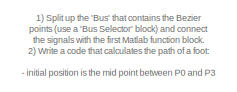
[diagram: root canvas - part 1/2, top left region]
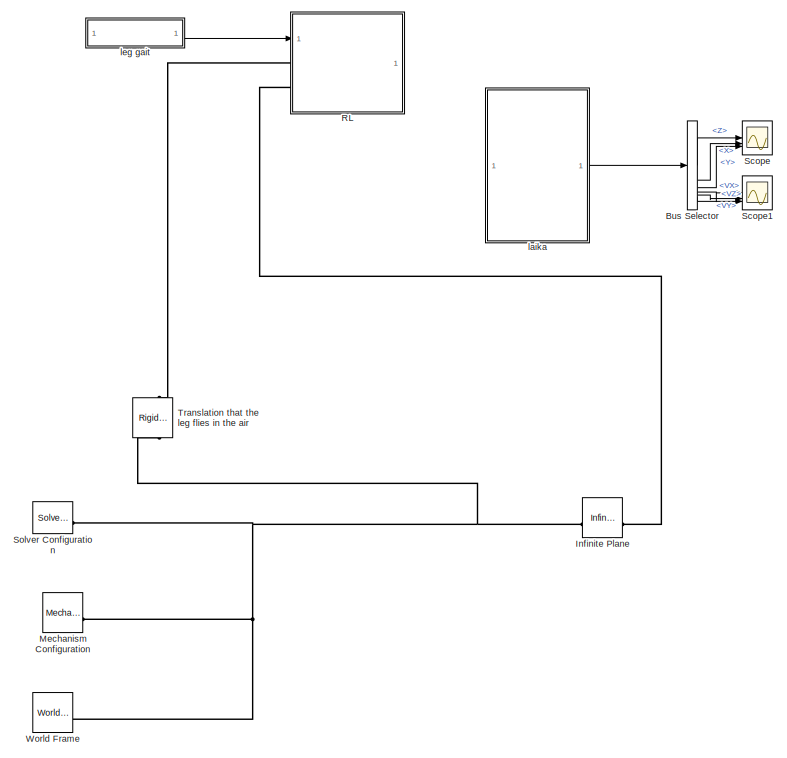
[diagram: root canvas - part 2/2, right side, full height]
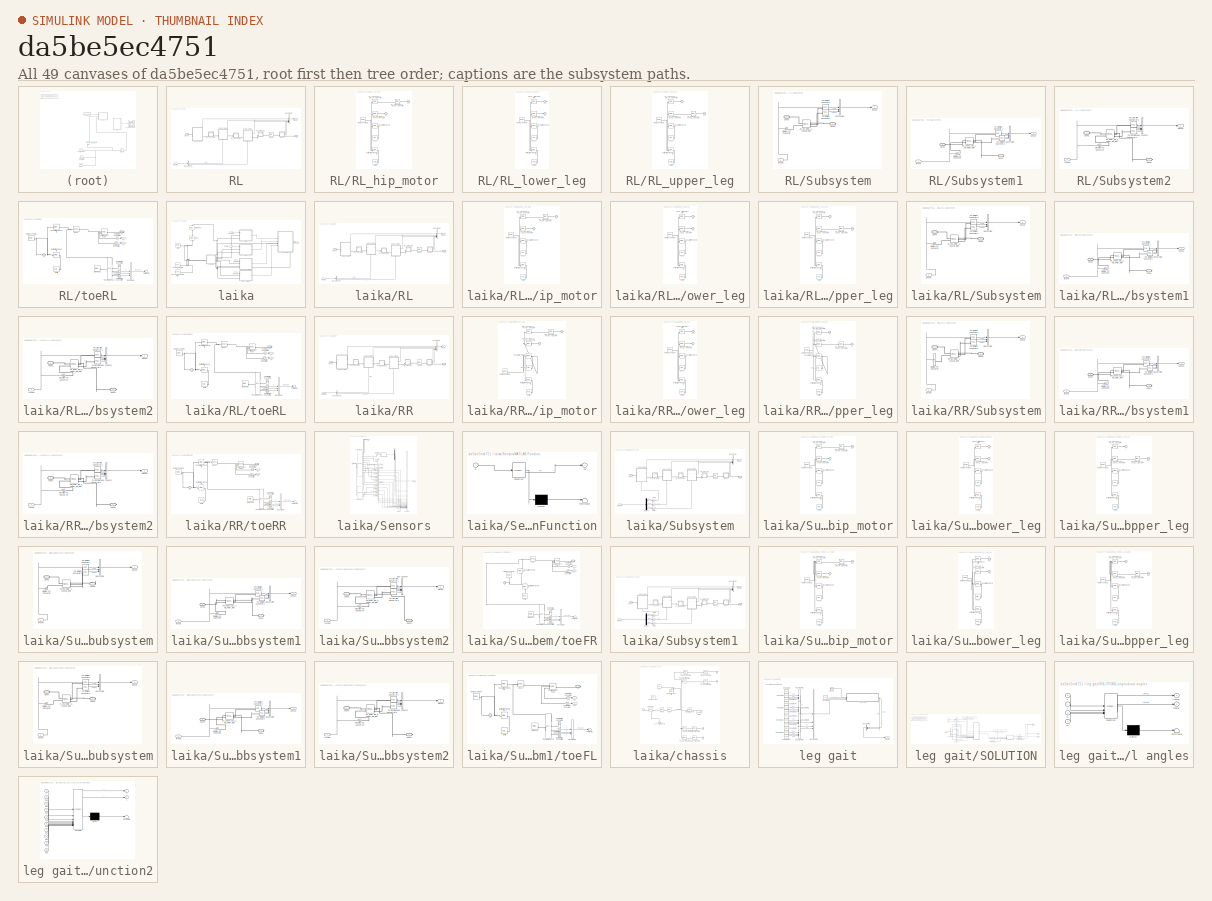
[diagram: thumbnail index - all 49 canvases of the model, root first then tree order]
MODEL slx_da5be5ec4751
KIND model
CONFIG AbsTol = auto
CONFIG EnableMultiTasking = off
CONFIG FixedStep = auto
CONFIG MaxStep = auto
CONFIG MinStep = auto
CONFIG RelTol = 1e-3
CONFIG SampleTimeConstraint = Unconstrained
CONFIG SolverName = VariableStepAuto
CONFIG StartTime = 0.0
CONFIG StopTime = 10
BLOCK [BusSelector] Bus Selector
  Commented = on
  OutputSignals = Z,X,Y,VX,VY,VZ
BLOCK [Reference] Infinite Plane  REF=sm_lib/Curves and Surfaces/Infinite Plane
  SourceBlock = sm_lib/Curves and Surfaces/Infinite Plane
  SourceType = Infinite Plane
BLOCK [Reference] Mechanism Configuration  REF=sm_lib/Utilities/Mechanism
Configuration
  SourceBlock = sm_lib/Utilities/Mechanism\nConfiguration
  SourceType = Mechanism\nConfiguration
BLOCK [SubSystem] RL
BLOCK [BusCreator] RL/Bus Creator
  DisplayOption = bar
  InheritFromInputs = on
  Inputs = 5
BLOCK [BusSelector] RL/Bus Selector
  OutputSignals = Hip,Knee
BLOCK [PMIOPort] RL/Conn1
  Side = Left
BLOCK [PMIOPort] RL/G
  NameLocation = top
  Port = 2
  Side = Left
BLOCK [Inport] RL/InputRL
BLOCK [SubSystem] RL/RL_hip_motor
BLOCK [PMIOPort] RL/RL_hip_motor/F
  Side = Left
BLOCK [PMIOPort] RL/RL_hip_motor/F1
  Port = 2
  Side = Right
BLOCK [Reference] RL/RL_hip_motor/Inertia  REF=sm_lib/Body Elements/Inertia
  SourceBlock = sm_lib/Body Elements/Inertia
  SourceType = Inertia
BLOCK [Reference] RL/RL_hip_motor/InertiaOriginTransform  REF=sm_lib/Frames and
Transforms/Rigid
Transform
  SourceBlock = sm_lib/Frames and\nTransforms/Rigid\nTransform
  SourceType = Rigid\nTransform
BLOCK [Reference] RL/RL_hip_motor/RL_hip_motor_2_chassis_joint_AxisInvTransform  REF=sm_lib/Frames and
Transforms/Rigid
Transform
  SourceBlock = sm_lib/Frames and\nTransforms/Rigid\nTransform
  SourceType = Rigid\nTransform
BLOCK [Reference] RL/RL_hip_motor/RL_upper_leg_2_hip_motor_joint_AxisTransform  REF=sm_lib/Frames and
Transforms/Rigid
Transform
  SourceBlock = sm_lib/Frames and\nTransforms/Rigid\nTransform
  SourceType = Rigid\nTransform
BLOCK [Reference] RL/RL_hip_motor/RL_upper_leg_2_hip_motor_joint_OriginTransform  REF=sm_lib/Frames and
Transforms/Rigid
Transform
  SourceBlock = sm_lib/Frames and\nTransforms/Rigid\nTransform
  SourceType = Rigid\nTransform
BLOCK [Reference] RL/RL_hip_motor/ReferenceFrame  REF=sm_lib/Frames and
Transforms/Reference
Frame
  SourceBlock = sm_lib/Frames and\nTransforms/Reference\nFrame
  SourceType = Reference\nFrame
BLOCK [Reference] RL/RL_hip_motor/Visual  REF=sm_lib/Body Elements/File Solid
  SourceBlock = sm_lib/Body Elements/File Solid
  SourceType = File Solid
BLOCK [Reference] RL/RL_hip_motor/VisualOriginTransform  REF=sm_lib/Frames and
Transforms/Rigid
Transform
  SourceBlock = sm_lib/Frames and\nTransforms/Rigid\nTransform
  SourceType = Rigid\nTransform
BLOCK [SubSystem] RL/RL_lower_leg
BLOCK [PMIOPort] RL/RL_lower_leg/F
  Side = Left
BLOCK [PMIOPort] RL/RL_lower_leg/F1
  Port = 2
  Side = Right
BLOCK [Reference] RL/RL_lower_leg/Inertia  REF=sm_lib/Body Elements/Inertia
  SourceBlock = sm_lib/Body Elements/Inertia
  SourceType = Inertia
BLOCK [Reference] RL/RL_lower_leg/InertiaOriginTransform  REF=sm_lib/Frames and
Transforms/Rigid
Transform
  SourceBlock = sm_lib/Frames and\nTransforms/Rigid\nTransform
  SourceType = Rigid\nTransform
BLOCK [Reference] RL/RL_lower_leg/RL_lower_leg_2_upper_leg_joint_AxisInvTransform  REF=sm_lib/Frames and
Transforms/Rigid
Transform
  SourceBlock = sm_lib/Frames and\nTransforms/Rigid\nTransform
  SourceType = Rigid\nTransform
BLOCK [Reference] RL/RL_lower_leg/ReferenceFrame  REF=sm_lib/Frames and
Transforms/Reference
Frame
  SourceBlock = sm_lib/Frames and\nTransforms/Reference\nFrame
  SourceType = Reference\nFrame
BLOCK [Reference] RL/RL_lower_leg/Visual  REF=sm_lib/Body Elements/File Solid
  SourceBlock = sm_lib/Body Elements/File Solid
  SourceType = File Solid
BLOCK [Reference] RL/RL_lower_leg/VisualOriginTransform  REF=sm_lib/Frames and
Transforms/Rigid
Transform
  SourceBlock = sm_lib/Frames and\nTransforms/Rigid\nTransform
  SourceType = Rigid\nTransform
BLOCK [Reference] RL/RL_lower_leg/jtoeRL_OriginTransform  REF=sm_lib/Frames and
Transforms/Rigid
Transform
  SourceBlock = sm_lib/Frames and\nTransforms/Rigid\nTransform
  SourceType = Rigid\nTransform
BLOCK [SubSystem] RL/RL_upper_leg
BLOCK [PMIOPort] RL/RL_upper_leg/F
  Side = Left
BLOCK [PMIOPort] RL/RL_upper_leg/F1
  Port = 2
  Side = Right
BLOCK [Reference] RL/RL_upper_leg/Inertia  REF=sm_lib/Body Elements/Inertia
  SourceBlock = sm_lib/Body Elements/Inertia
  SourceType = Inertia
BLOCK [Reference] RL/RL_upper_leg/InertiaOriginTransform  REF=sm_lib/Frames and
Transforms/Rigid
Transform
  SourceBlock = sm_lib/Frames and\nTransforms/Rigid\nTransform
  SourceType = Rigid\nTransform
BLOCK [Reference] RL/RL_upper_leg/RL_lower_leg_2_upper_leg_joint_AxisTransform  REF=sm_lib/Frames and
Transforms/Rigid
Transform
  SourceBlock = sm_lib/Frames and\nTransforms/Rigid\nTransform
  SourceType = Rigid\nTransform
BLOCK [Reference] RL/RL_upper_leg/RL_lower_leg_2_upper_leg_joint_OriginTransform  REF=sm_lib/Frames and
Transforms/Rigid
Transform
  SourceBlock = sm_lib/Frames and\nTransforms/Rigid\nTransform
  SourceType = Rigid\nTransform
BLOCK [Reference] RL/RL_upper_leg/RL_upper_leg_2_hip_motor_joint_AxisInvTransform  REF=sm_lib/Frames and
Transforms/Rigid
Transform
  SourceBlock = sm_lib/Frames and\nTransforms/Rigid\nTransform
  SourceType = Rigid\nTransform
BLOCK [Reference] RL/RL_upper_leg/ReferenceFrame  REF=sm_lib/Frames and
Transforms/Reference
Frame
  SourceBlock = sm_lib/Frames and\nTransforms/Reference\nFrame
  SourceType = Reference\nFrame
BLOCK [Reference] RL/RL_upper_leg/Visual  REF=sm_lib/Body Elements/File Solid
  SourceBlock = sm_lib/Body Elements/File Solid
  SourceType = File Solid
BLOCK [Reference] RL/RL_upper_leg/VisualOriginTransform  REF=sm_lib/Frames and
Transforms/Rigid
Transform
  SourceBlock = sm_lib/Frames and\nTransforms/Rigid\nTransform
  SourceType = Rigid\nTransform
BLOCK [SubSystem] RL/Subsystem
  PortSchema = {"entries":[{"content":{"sides":[{"content":{"connectorIds":["LConn1"]},"type":"ConnectorPlacement.EquallySpacedRectSide","uuid":"d10d1646-662a-418c-8f44-f8cb7d7b2586"},{"content":{"connectorIds":["RConn1"],"side":"RIGHT"},"type":"ConnectorPlacement.EquallySpacedRectSide","uuid":"1df4eb92-be91-4006-ac5e-dec2e273d2b2"},{"content":{"connectorIds":["Out1"],"side":"TOP"},"type":"ConnectorPlacement.Equ...<+400ch>  <repeated x10 — deduplicated; at blocks: Subsystem, Subsystem1>
BLOCK [BusCreator] RL/Subsystem/Bus Creator
  DisplayOption = bar
  InheritFromInputs = on
  Inputs = 3
BLOCK [PMIOPort] RL/Subsystem/Conn1
  Side = Left
BLOCK [PMIOPort] RL/Subsystem/Conn3
  Port = 2
  Side = Right
BLOCK [Reference] RL/Subsystem/PS-Simulink Converter1  REF=nesl_utility/PS-Simulink
Converter
  SourceBlock = nesl_utility/PS-Simulink\nConverter
  SourceType = PS-Simulink\nConverter
BLOCK [Reference] RL/Subsystem/PS-Simulink Converter2  REF=nesl_utility/PS-Simulink
Converter
  SourceBlock = nesl_utility/PS-Simulink\nConverter
  SourceType = PS-Simulink\nConverter
BLOCK [Reference] RL/Subsystem/RL_hip_motor_2_chassis_joint  REF=sm_lib/Joints/Revolute Joint
  SourceBlock = sm_lib/Joints/Revolute Joint
  SourceType = Revolute Joint
BLOCK [Outport] RL/Subsystem/Sensor
BLOCK [Reference] RL/Subsystem/Simulink-PS Converter  REF=nesl_utility/Simulink-PS
Converter
  SourceBlock = nesl_utility/Simulink-PS\nConverter
  SourceType = Simulink-PS\nConverter
BLOCK [Inport] RL/Subsystem/torque
BLOCK [SubSystem] RL/Subsystem1
BLOCK [BusCreator] RL/Subsystem1/Bus Creator
  DisplayOption = bar
  InheritFromInputs = on
  Inputs = 3
BLOCK [PMIOPort] RL/Subsystem1/Conn1
  Port = 2
  Side = Right
BLOCK [PMIOPort] RL/Subsystem1/Conn2
  Side = Left
BLOCK [Reference] RL/Subsystem1/PS-Simulink Converter1  REF=nesl_utility/PS-Simulink
Converter
  SourceBlock = nesl_utility/PS-Simulink\nConverter
  SourceType = PS-Simulink\nConverter
BLOCK [Reference] RL/Subsystem1/PS-Simulink Converter2  REF=nesl_utility/PS-Simulink
Converter
  SourceBlock = nesl_utility/PS-Simulink\nConverter
  SourceType = PS-Simulink\nConverter
BLOCK [Reference] RL/Subsystem1/RL_upper_leg_2_hip_motor_joint  REF=sm_lib/Joints/Revolute Joint
  SourceBlock = sm_lib/Joints/Revolute Joint
  SourceType = Revolute Joint
BLOCK [Outport] RL/Subsystem1/Sensor
BLOCK [Reference] RL/Subsystem1/Simulink-PS Converter  REF=nesl_utility/Simulink-PS
Converter
  SourceBlock = nesl_utility/Simulink-PS\nConverter
  SourceType = Simulink-PS\nConverter
BLOCK [Inport] RL/Subsystem1/torque
BLOCK [SubSystem] RL/Subsystem2
  PortSchema = {"entries":[{"content":{"sides":[{"content":{"connectorIds":["LConn1"]},"type":"ConnectorPlacement.EquallySpacedRectSide","uuid":"d10d1646-662a-418c-8f44-f8cb7d7b2586"},{"content":{"connectorIds":["Out1","RConn1"],"side":"RIGHT"},"type":"ConnectorPlacement.EquallySpacedRectSide","uuid":"1df4eb92-be91-4006-ac5e-dec2e273d2b2"},{"content":{"side":"TOP"},"type":"ConnectorPlacement.EquallySpacedRectSid...<+383ch>  <repeated x5 — deduplicated; at blocks: Subsystem2>
BLOCK [BusCreator] RL/Subsystem2/Bus Creator
  DisplayOption = bar
  InheritFromInputs = on
  Inputs = 3
BLOCK [PMIOPort] RL/Subsystem2/Conn1
  Side = Left
BLOCK [PMIOPort] RL/Subsystem2/Conn2
  Port = 2
  Side = Right
BLOCK [Reference] RL/Subsystem2/PS-Simulink Converter1  REF=nesl_utility/PS-Simulink
Converter
  SourceBlock = nesl_utility/PS-Simulink\nConverter
  SourceType = PS-Simulink\nConverter
BLOCK [Reference] RL/Subsystem2/PS-Simulink Converter2  REF=nesl_utility/PS-Simulink
Converter
  SourceBlock = nesl_utility/PS-Simulink\nConverter
  SourceType = PS-Simulink\nConverter
BLOCK [Reference] RL/Subsystem2/RL_lower_leg_2_upper_leg_joint  REF=sm_lib/Joints/Revolute Joint
  SourceBlock = sm_lib/Joints/Revolute Joint
  SourceType = Revolute Joint
BLOCK [Outport] RL/Subsystem2/Sensor
BLOCK [Reference] RL/Subsystem2/Simulink-PS Converter  REF=nesl_utility/Simulink-PS
Converter
  SourceBlock = nesl_utility/Simulink-PS\nConverter
  SourceType = Simulink-PS\nConverter
BLOCK [Inport] RL/Subsystem2/torque
BLOCK [Reference] RL/jtoeRL  REF=sm_lib/Joints/Weld Joint
  SourceBlock = sm_lib/Joints/Weld Joint
  SourceType = Weld Joint
BLOCK [Outport] RL/meas
  VectorParamsAs1DForOutWhenUnconnected = off
BLOCK [SubSystem] RL/toeRL
BLOCK [BusCreator] RL/toeRL/Bus Creator
  DisplayOption = bar
  InheritFromInputs = on
  Inputs = 3
BLOCK [PMIOPort] RL/toeRL/F
  Side = Left
BLOCK [Outport] RL/toeRL/Ff
  Port = 2
BLOCK [Outport] RL/toeRL/Fn
BLOCK [PMIOPort] RL/toeRL/G
  Port = 2
  Side = Right
BLOCK [Reference] RL/toeRL/Inertia  REF=sm_lib/Body Elements/Inertia
  SourceBlock = sm_lib/Body Elements/Inertia
  SourceType = Inertia
BLOCK [Reference] RL/toeRL/InertiaOriginTransform  REF=sm_lib/Frames and
Transforms/Rigid
Transform
  SourceBlock = sm_lib/Frames and\nTransforms/Rigid\nTransform
  SourceType = Rigid\nTransform
BLOCK [Reference] RL/toeRL/PS-Simulink Converter  REF=nesl_utility/PS-Simulink
Converter
  SourceBlock = nesl_utility/PS-Simulink\nConverter
  SourceType = PS-Simulink\nConverter
BLOCK [Reference] RL/toeRL/PS-Simulink Converter1  REF=nesl_utility/PS-Simulink
Converter
  SourceBlock = nesl_utility/PS-Simulink\nConverter
  SourceType = PS-Simulink\nConverter
BLOCK [Reference] RL/toeRL/PS-Simulink Converter2  REF=nesl_utility/PS-Simulink
Converter
  SourceBlock = nesl_utility/PS-Simulink\nConverter
  SourceType = PS-Simulink\nConverter
BLOCK [Reference] RL/toeRL/PS-Simulink Converter3  REF=nesl_utility/PS-Simulink
Converter
  SourceBlock = nesl_utility/PS-Simulink\nConverter
  SourceType = PS-Simulink\nConverter
BLOCK [Reference] RL/toeRL/PS-Simulink Converter4  REF=nesl_utility/PS-Simulink
Converter
  SourceBlock = nesl_utility/PS-Simulink\nConverter
  SourceType = PS-Simulink\nConverter
BLOCK [Reference] RL/toeRL/ReferenceFrame  REF=sm_lib/Frames and
Transforms/Reference
Frame
  SourceBlock = sm_lib/Frames and\nTransforms/Reference\nFrame
  SourceType = Reference\nFrame
BLOCK [Reference] RL/toeRL/Spatial Contact Force  REF=sm_lib/Forces and
Torques/Spatial
Contact Force
  SourceBlock = sm_lib/Forces and\nTorques/Spatial\nContact Force
  SourceType = Spatial\nContact Force
BLOCK [Terminator] RL/toeRL/Terminator
BLOCK [Reference] RL/toeRL/Transform Sensor  REF=sm_lib/Frames and
Transforms/Transform
Sensor
  NameLocation = top
  SourceBlock = sm_lib/Frames and\nTransforms/Transform\nSensor
  SourceType = Transform\nSensor
BLOCK [Reference] RL/toeRL/Visual  REF=sm_lib/Body Elements/Spherical Solid
  SourceBlock = sm_lib/Body Elements/Spherical Solid
  SourceType = Spherical Solid
BLOCK [Reference] RL/toeRL/VisualOriginTransform  REF=sm_lib/Frames and
Transforms/Rigid
Transform
  SourceBlock = sm_lib/Frames and\nTransforms/Rigid\nTransform
  SourceType = Rigid\nTransform
BLOCK [Reference] RL/toeRL/World Frame  REF=sm_lib/Frames and
Transforms/World Frame
  SourceBlock = sm_lib/Frames and\nTransforms/World Frame
  SourceType = World Frame
BLOCK [Scope] Scope
  Commented = on
  Floating = off
  NameLocation = top
  NumInputPorts = 3
  ScopeSpecificationString = Simulink.scopes.TimeScopeBlockCfg('CurrentConfiguration', extmgr.ConfigurationSet(extmgr.Configuration('Core','General UI',true),extmgr.Configuration('Core','Source UI',true),extmgr.Configuration('Sources','WiredSimulink',true),extmgr.Configuration('Visuals','Time Domain',true,'SerializedDisplays',{struct('MinYLimReal','-0.40679','MaxYLimReal','0.88244','YLabelReal','','MinYLimMag','0.00000','MaxY...<+1806ch>
BLOCK [Scope] Scope1
  Commented = on
  Floating = off
  NameLocation = top
  NumInputPorts = 3
  ScopeSpecificationString = Simulink.scopes.TimeScopeBlockCfg('CurrentConfiguration', extmgr.ConfigurationSet(extmgr.Configuration('Core','General UI',true),extmgr.Configuration('Core','Source UI',true),extmgr.Configuration('Sources','WiredSimulink',true,'DataLoggingVariableName','ScopeData1'),extmgr.Configuration('Visuals','Time Domain',true,'SerializedDisplays',{struct('MinYLimReal','-3.1432','MaxYLimReal','1.55052','YLabe...<+1857ch>
BLOCK [Reference] Solver Configuration  REF=nesl_utility/Solver
Configuration
  SourceBlock = nesl_utility/Solver\nConfiguration
  SourceType = Solver\nConfiguration
BLOCK [Reference] Translation that the leg flies in the air  REF=sm_lib/Frames and
Transforms/Rigid
Transform
  SourceBlock = sm_lib/Frames and\nTransforms/Rigid\nTransform
  SourceType = Rigid\nTransform
BLOCK [Reference] World Frame  REF=sm_lib/Frames and
Transforms/World Frame
  SourceBlock = sm_lib/Frames and\nTransforms/World Frame
  SourceType = World Frame
BLOCK [SubSystem] laika
  Commented = on
BLOCK [Inport] laika/InputRL
  Port = 2
BLOCK [Reference] laika/MechanismConfiguration  REF=sm_lib/Utilities/Mechanism
Configuration
  SourceBlock = sm_lib/Utilities/Mechanism\nConfiguration
  SourceType = Mechanism\nConfiguration
BLOCK [SubSystem] laika/RL
BLOCK [BusCreator] laika/RL/Bus Creator
  DisplayOption = bar
  InheritFromInputs = on
  Inputs = 5
BLOCK [BusSelector] laika/RL/Bus Selector
  OutputSignals = Hip,Knee
BLOCK [PMIOPort] laika/RL/Conn1
  Side = Left
BLOCK [PMIOPort] laika/RL/G
  NameLocation = top
  Port = 2
  Side = Left
BLOCK [Inport] laika/RL/InputRL
BLOCK [SubSystem] laika/RL/RL_hip_motor
BLOCK [PMIOPort] laika/RL/RL_hip_motor/F
  Side = Left
BLOCK [PMIOPort] laika/RL/RL_hip_motor/F1
  Port = 2
  Side = Right
BLOCK [Reference] laika/RL/RL_hip_motor/Inertia  REF=sm_lib/Body Elements/Inertia
  SourceBlock = sm_lib/Body Elements/Inertia
  SourceType = Inertia
BLOCK [Reference] laika/RL/RL_hip_motor/InertiaOriginTransform  REF=sm_lib/Frames and
Transforms/Rigid
Transform
  SourceBlock = sm_lib/Frames and\nTransforms/Rigid\nTransform
  SourceType = Rigid\nTransform
BLOCK [Reference] laika/RL/RL_hip_motor/RL_hip_motor_2_chassis_joint_AxisInvTransform  REF=sm_lib/Frames and
Transforms/Rigid
Transform
  SourceBlock = sm_lib/Frames and\nTransforms/Rigid\nTransform
  SourceType = Rigid\nTransform
BLOCK [Reference] laika/RL/RL_hip_motor/RL_upper_leg_2_hip_motor_joint_AxisTransform  REF=sm_lib/Frames and
Transforms/Rigid
Transform
  SourceBlock = sm_lib/Frames and\nTransforms/Rigid\nTransform
  SourceType = Rigid\nTransform
BLOCK [Reference] laika/RL/RL_hip_motor/RL_upper_leg_2_hip_motor_joint_OriginTransform  REF=sm_lib/Frames and
Transforms/Rigid
Transform
  SourceBlock = sm_lib/Frames and\nTransforms/Rigid\nTransform
  SourceType = Rigid\nTransform
BLOCK [Reference] laika/RL/RL_hip_motor/ReferenceFrame  REF=sm_lib/Frames and
Transforms/Reference
Frame
  SourceBlock = sm_lib/Frames and\nTransforms/Reference\nFrame
  SourceType = Reference\nFrame
BLOCK [Reference] laika/RL/RL_hip_motor/Visual  REF=sm_lib/Body Elements/File Solid
  SourceBlock = sm_lib/Body Elements/File Solid
  SourceType = File Solid
BLOCK [Reference] laika/RL/RL_hip_motor/VisualOriginTransform  REF=sm_lib/Frames and
Transforms/Rigid
Transform
  SourceBlock = sm_lib/Frames and\nTransforms/Rigid\nTransform
  SourceType = Rigid\nTransform
BLOCK [SubSystem] laika/RL/RL_lower_leg
BLOCK [PMIOPort] laika/RL/RL_lower_leg/F
  Side = Left
BLOCK [PMIOPort] laika/RL/RL_lower_leg/F1
  Port = 2
  Side = Right
BLOCK [Reference] laika/RL/RL_lower_leg/Inertia  REF=sm_lib/Body Elements/Inertia
  SourceBlock = sm_lib/Body Elements/Inertia
  SourceType = Inertia
BLOCK [Reference] laika/RL/RL_lower_leg/InertiaOriginTransform  REF=sm_lib/Frames and
Transforms/Rigid
Transform
  SourceBlock = sm_lib/Frames and\nTransforms/Rigid\nTransform
  SourceType = Rigid\nTransform
BLOCK [Reference] laika/RL/RL_lower_leg/RL_lower_leg_2_upper_leg_joint_AxisInvTransform  REF=sm_lib/Frames and
Transforms/Rigid
Transform
  SourceBlock = sm_lib/Frames and\nTransforms/Rigid\nTransform
  SourceType = Rigid\nTransform
BLOCK [Reference] laika/RL/RL_lower_leg/ReferenceFrame  REF=sm_lib/Frames and
Transforms/Reference
Frame
  SourceBlock = sm_lib/Frames and\nTransforms/Reference\nFrame
  SourceType = Reference\nFrame
BLOCK [Reference] laika/RL/RL_lower_leg/Visual  REF=sm_lib/Body Elements/File Solid
  SourceBlock = sm_lib/Body Elements/File Solid
  SourceType = File Solid
BLOCK [Reference] laika/RL/RL_lower_leg/VisualOriginTransform  REF=sm_lib/Frames and
Transforms/Rigid
Transform
  SourceBlock = sm_lib/Frames and\nTransforms/Rigid\nTransform
  SourceType = Rigid\nTransform
BLOCK [Reference] laika/RL/RL_lower_leg/jtoeRL_OriginTransform  REF=sm_lib/Frames and
Transforms/Rigid
Transform
  SourceBlock = sm_lib/Frames and\nTransforms/Rigid\nTransform
  SourceType = Rigid\nTransform
BLOCK [SubSystem] laika/RL/RL_upper_leg
BLOCK [PMIOPort] laika/RL/RL_upper_leg/F
  Side = Left
BLOCK [PMIOPort] laika/RL/RL_upper_leg/F1
  Port = 2
  Side = Right
BLOCK [Reference] laika/RL/RL_upper_leg/Inertia  REF=sm_lib/Body Elements/Inertia
  SourceBlock = sm_lib/Body Elements/Inertia
  SourceType = Inertia
BLOCK [Reference] laika/RL/RL_upper_leg/InertiaOriginTransform  REF=sm_lib/Frames and
Transforms/Rigid
Transform
  SourceBlock = sm_lib/Frames and\nTransforms/Rigid\nTransform
  SourceType = Rigid\nTransform
BLOCK [Reference] laika/RL/RL_upper_leg/RL_lower_leg_2_upper_leg_joint_AxisTransform  REF=sm_lib/Frames and
Transforms/Rigid
Transform
  SourceBlock = sm_lib/Frames and\nTransforms/Rigid\nTransform
  SourceType = Rigid\nTransform
BLOCK [Reference] laika/RL/RL_upper_leg/RL_lower_leg_2_upper_leg_joint_OriginTransform  REF=sm_lib/Frames and
Transforms/Rigid
Transform
  SourceBlock = sm_lib/Frames and\nTransforms/Rigid\nTransform
  SourceType = Rigid\nTransform
BLOCK [Reference] laika/RL/RL_upper_leg/RL_upper_leg_2_hip_motor_joint_AxisInvTransform  REF=sm_lib/Frames and
Transforms/Rigid
Transform
  SourceBlock = sm_lib/Frames and\nTransforms/Rigid\nTransform
  SourceType = Rigid\nTransform
BLOCK [Reference] laika/RL/RL_upper_leg/ReferenceFrame  REF=sm_lib/Frames and
Transforms/Reference
Frame
  SourceBlock = sm_lib/Frames and\nTransforms/Reference\nFrame
  SourceType = Reference\nFrame
BLOCK [Reference] laika/RL/RL_upper_leg/Visual  REF=sm_lib/Body Elements/File Solid
  SourceBlock = sm_lib/Body Elements/File Solid
  SourceType = File Solid
BLOCK [Reference] laika/RL/RL_upper_leg/VisualOriginTransform  REF=sm_lib/Frames and
Transforms/Rigid
Transform
  SourceBlock = sm_lib/Frames and\nTransforms/Rigid\nTransform
  SourceType = Rigid\nTransform
BLOCK [SubSystem] laika/RL/Subsystem
BLOCK [BusCreator] laika/RL/Subsystem/Bus Creator
  DisplayOption = bar
  InheritFromInputs = on
  Inputs = 3
BLOCK [PMIOPort] laika/RL/Subsystem/Conn1
  Side = Left
BLOCK [PMIOPort] laika/RL/Subsystem/Conn3
  Port = 2
  Side = Right
BLOCK [Reference] laika/RL/Subsystem/PS-Simulink Converter1  REF=nesl_utility/PS-Simulink
Converter
  SourceBlock = nesl_utility/PS-Simulink\nConverter
  SourceType = PS-Simulink\nConverter
BLOCK [Reference] laika/RL/Subsystem/PS-Simulink Converter2  REF=nesl_utility/PS-Simulink
Converter
  SourceBlock = nesl_utility/PS-Simulink\nConverter
  SourceType = PS-Simulink\nConverter
BLOCK [Reference] laika/RL/Subsystem/RL_hip_motor_2_chassis_joint  REF=sm_lib/Joints/Revolute Joint
  SourceBlock = sm_lib/Joints/Revolute Joint
  SourceType = Revolute Joint
BLOCK [Outport] laika/RL/Subsystem/Sensor
BLOCK [Reference] laika/RL/Subsystem/Simulink-PS Converter  REF=nesl_utility/Simulink-PS
Converter
  SourceBlock = nesl_utility/Simulink-PS\nConverter
  SourceType = Simulink-PS\nConverter
BLOCK [Inport] laika/RL/Subsystem/torque
BLOCK [SubSystem] laika/RL/Subsystem1
BLOCK [BusCreator] laika/RL/Subsystem1/Bus Creator
  DisplayOption = bar
  InheritFromInputs = on
  Inputs = 3
BLOCK [PMIOPort] laika/RL/Subsystem1/Conn1
  Port = 2
  Side = Right
BLOCK [PMIOPort] laika/RL/Subsystem1/Conn2
  Side = Left
BLOCK [Reference] laika/RL/Subsystem1/PS-Simulink Converter1  REF=nesl_utility/PS-Simulink
Converter
  SourceBlock = nesl_utility/PS-Simulink\nConverter
  SourceType = PS-Simulink\nConverter
BLOCK [Reference] laika/RL/Subsystem1/PS-Simulink Converter2  REF=nesl_utility/PS-Simulink
Converter
  SourceBlock = nesl_utility/PS-Simulink\nConverter
  SourceType = PS-Simulink\nConverter
BLOCK [Reference] laika/RL/Subsystem1/RL_upper_leg_2_hip_motor_joint  REF=sm_lib/Joints/Revolute Joint
  SourceBlock = sm_lib/Joints/Revolute Joint
  SourceType = Revolute Joint
BLOCK [Outport] laika/RL/Subsystem1/Sensor
BLOCK [Reference] laika/RL/Subsystem1/Simulink-PS Converter  REF=nesl_utility/Simulink-PS
Converter
  SourceBlock = nesl_utility/Simulink-PS\nConverter
  SourceType = Simulink-PS\nConverter
BLOCK [Inport] laika/RL/Subsystem1/torque
BLOCK [SubSystem] laika/RL/Subsystem2
BLOCK [BusCreator] laika/RL/Subsystem2/Bus Creator
  DisplayOption = bar
  InheritFromInputs = on
  Inputs = 3
BLOCK [PMIOPort] laika/RL/Subsystem2/Conn1
  Side = Left
BLOCK [PMIOPort] laika/RL/Subsystem2/Conn2
  Port = 2
  Side = Right
BLOCK [Reference] laika/RL/Subsystem2/PS-Simulink Converter1  REF=nesl_utility/PS-Simulink
Converter
  SourceBlock = nesl_utility/PS-Simulink\nConverter
  SourceType = PS-Simulink\nConverter
BLOCK [Reference] laika/RL/Subsystem2/PS-Simulink Converter2  REF=nesl_utility/PS-Simulink
Converter
  SourceBlock = nesl_utility/PS-Simulink\nConverter
  SourceType = PS-Simulink\nConverter
BLOCK [Reference] laika/RL/Subsystem2/RL_lower_leg_2_upper_leg_joint  REF=sm_lib/Joints/Revolute Joint
  SourceBlock = sm_lib/Joints/Revolute Joint
  SourceType = Revolute Joint
BLOCK [Outport] laika/RL/Subsystem2/Sensor
BLOCK [Reference] laika/RL/Subsystem2/Simulink-PS Converter  REF=nesl_utility/Simulink-PS
Converter
  SourceBlock = nesl_utility/Simulink-PS\nConverter
  SourceType = Simulink-PS\nConverter
BLOCK [Inport] laika/RL/Subsystem2/torque
BLOCK [Reference] laika/RL/jtoeRL  REF=sm_lib/Joints/Weld Joint
  SourceBlock = sm_lib/Joints/Weld Joint
  SourceType = Weld Joint
BLOCK [Outport] laika/RL/meas
  VectorParamsAs1DForOutWhenUnconnected = off
BLOCK [SubSystem] laika/RL/toeRL
BLOCK [BusCreator] laika/RL/toeRL/Bus Creator
  DisplayOption = bar
  InheritFromInputs = on
  Inputs = 3
BLOCK [PMIOPort] laika/RL/toeRL/F
  Side = Left
BLOCK [Outport] laika/RL/toeRL/Ff
  Port = 2
BLOCK [Outport] laika/RL/toeRL/Fn
BLOCK [PMIOPort] laika/RL/toeRL/G
  Port = 2
  Side = Right
BLOCK [Reference] laika/RL/toeRL/Inertia  REF=sm_lib/Body Elements/Inertia
  SourceBlock = sm_lib/Body Elements/Inertia
  SourceType = Inertia
BLOCK [Reference] laika/RL/toeRL/InertiaOriginTransform  REF=sm_lib/Frames and
Transforms/Rigid
Transform
  SourceBlock = sm_lib/Frames and\nTransforms/Rigid\nTransform
  SourceType = Rigid\nTransform
BLOCK [Reference] laika/RL/toeRL/PS-Simulink Converter  REF=nesl_utility/PS-Simulink
Converter
  SourceBlock = nesl_utility/PS-Simulink\nConverter
  SourceType = PS-Simulink\nConverter
BLOCK [Reference] laika/RL/toeRL/PS-Simulink Converter1  REF=nesl_utility/PS-Simulink
Converter
  SourceBlock = nesl_utility/PS-Simulink\nConverter
  SourceType = PS-Simulink\nConverter
BLOCK [Reference] laika/RL/toeRL/PS-Simulink Converter2  REF=nesl_utility/PS-Simulink
Converter
  SourceBlock = nesl_utility/PS-Simulink\nConverter
  SourceType = PS-Simulink\nConverter
BLOCK [Reference] laika/RL/toeRL/PS-Simulink Converter3  REF=nesl_utility/PS-Simulink
Converter
  SourceBlock = nesl_utility/PS-Simulink\nConverter
  SourceType = PS-Simulink\nConverter
BLOCK [Reference] laika/RL/toeRL/PS-Simulink Converter4  REF=nesl_utility/PS-Simulink
Converter
  SourceBlock = nesl_utility/PS-Simulink\nConverter
  SourceType = PS-Simulink\nConverter
BLOCK [Reference] laika/RL/toeRL/ReferenceFrame  REF=sm_lib/Frames and
Transforms/Reference
Frame
  SourceBlock = sm_lib/Frames and\nTransforms/Reference\nFrame
  SourceType = Reference\nFrame
BLOCK [Reference] laika/RL/toeRL/Spatial Contact Force  REF=sm_lib/Forces and
Torques/Spatial
Contact Force
  SourceBlock = sm_lib/Forces and\nTorques/Spatial\nContact Force
  SourceType = Spatial\nContact Force
BLOCK [Terminator] laika/RL/toeRL/Terminator
BLOCK [Reference] laika/RL/toeRL/Transform Sensor  REF=sm_lib/Frames and
Transforms/Transform
Sensor
  NameLocation = top
  SourceBlock = sm_lib/Frames and\nTransforms/Transform\nSensor
  SourceType = Transform\nSensor
BLOCK [Reference] laika/RL/toeRL/Visual  REF=sm_lib/Body Elements/Spherical Solid
  SourceBlock = sm_lib/Body Elements/Spherical Solid
  SourceType = Spherical Solid
BLOCK [Reference] laika/RL/toeRL/VisualOriginTransform  REF=sm_lib/Frames and
Transforms/Rigid
Transform
  SourceBlock = sm_lib/Frames and\nTransforms/Rigid\nTransform
  SourceType = Rigid\nTransform
BLOCK [Reference] laika/RL/toeRL/World Frame  REF=sm_lib/Frames and
Transforms/World Frame
  SourceBlock = sm_lib/Frames and\nTransforms/World Frame
  SourceType = World Frame
BLOCK [SubSystem] laika/RR
BLOCK [BusCreator] laika/RR/Bus Creator
  DisplayOption = bar
  InheritFromInputs = on
  Inputs = 5
BLOCK [BusSelector] laika/RR/Bus Selector
  Commented = on
  OutputSignals = Hip,Knee
BLOCK [PMIOPort] laika/RR/Conn1
  Side = Left
BLOCK [PMIOPort] laika/RR/G
  NameLocation = top
  Port = 2
  Side = Left
BLOCK [Inport] laika/RR/InputRR
BLOCK [SubSystem] laika/RR/RR_hip_motor
BLOCK [PMIOPort] laika/RR/RR_hip_motor/F
  Side = Left
BLOCK [PMIOPort] laika/RR/RR_hip_motor/F1
  Port = 2
  Side = Right
BLOCK [Reference] laika/RR/RR_hip_motor/Inertia  REF=sm_lib/Body Elements/Inertia
  SourceBlock = sm_lib/Body Elements/Inertia
  SourceType = Inertia
BLOCK [Reference] laika/RR/RR_hip_motor/InertiaOriginTransform  REF=sm_lib/Frames and
Transforms/Rigid
Transform
  SourceBlock = sm_lib/Frames and\nTransforms/Rigid\nTransform
  SourceType = Rigid\nTransform
BLOCK [Reference] laika/RR/RR_hip_motor/RR_hip_motor_2_chassis_joint_AxisInvTransform  REF=sm_lib/Frames and
Transforms/Rigid
Transform
  SourceBlock = sm_lib/Frames and\nTransforms/Rigid\nTransform
  SourceType = Rigid\nTransform
BLOCK [Reference] laika/RR/RR_hip_motor/RR_upper_leg_2_hip_motor_joint_AxisTransform  REF=sm_lib/Frames and
Transforms/Rigid
Transform
  SourceBlock = sm_lib/Frames and\nTransforms/Rigid\nTransform
  SourceType = Rigid\nTransform
BLOCK [Reference] laika/RR/RR_hip_motor/RR_upper_leg_2_hip_motor_joint_OriginTransform  REF=sm_lib/Frames and
Transforms/Rigid
Transform
  SourceBlock = sm_lib/Frames and\nTransforms/Rigid\nTransform
  SourceType = Rigid\nTransform
BLOCK [Reference] laika/RR/RR_hip_motor/ReferenceFrame  REF=sm_lib/Frames and
Transforms/Reference
Frame
  SourceBlock = sm_lib/Frames and\nTransforms/Reference\nFrame
  SourceType = Reference\nFrame
BLOCK [Reference] laika/RR/RR_hip_motor/Visual  REF=sm_lib/Body Elements/File Solid
  SourceBlock = sm_lib/Body Elements/File Solid
  SourceType = File Solid
BLOCK [Reference] laika/RR/RR_hip_motor/VisualOriginTransform  REF=sm_lib/Frames and
Transforms/Rigid
Transform
  SourceBlock = sm_lib/Frames and\nTransforms/Rigid\nTransform
  SourceType = Rigid\nTransform
BLOCK [SubSystem] laika/RR/RR_lower_leg
BLOCK [PMIOPort] laika/RR/RR_lower_leg/F
  Side = Left
BLOCK [PMIOPort] laika/RR/RR_lower_leg/F1
  Port = 2
  Side = Right
BLOCK [Reference] laika/RR/RR_lower_leg/Inertia  REF=sm_lib/Body Elements/Inertia
  SourceBlock = sm_lib/Body Elements/Inertia
  SourceType = Inertia
BLOCK [Reference] laika/RR/RR_lower_leg/InertiaOriginTransform  REF=sm_lib/Frames and
Transforms/Rigid
Transform
  SourceBlock = sm_lib/Frames and\nTransforms/Rigid\nTransform
  SourceType = Rigid\nTransform
BLOCK [Reference] laika/RR/RR_lower_leg/RR_lower_leg_2_upper_leg_joint_AxisInvTransform  REF=sm_lib/Frames and
Transforms/Rigid
Transform
  SourceBlock = sm_lib/Frames and\nTransforms/Rigid\nTransform
  SourceType = Rigid\nTransform
BLOCK [Reference] laika/RR/RR_lower_leg/ReferenceFrame  REF=sm_lib/Frames and
Transforms/Reference
Frame
  SourceBlock = sm_lib/Frames and\nTransforms/Reference\nFrame
  SourceType = Reference\nFrame
BLOCK [Reference] laika/RR/RR_lower_leg/Visual  REF=sm_lib/Body Elements/File Solid
  SourceBlock = sm_lib/Body Elements/File Solid
  SourceType = File Solid
BLOCK [Reference] laika/RR/RR_lower_leg/VisualOriginTransform  REF=sm_lib/Frames and
Transforms/Rigid
Transform
  SourceBlock = sm_lib/Frames and\nTransforms/Rigid\nTransform
  SourceType = Rigid\nTransform
BLOCK [Reference] laika/RR/RR_lower_leg/jtoeRR_OriginTransform  REF=sm_lib/Frames and
Transforms/Rigid
Transform
  SourceBlock = sm_lib/Frames and\nTransforms/Rigid\nTransform
  SourceType = Rigid\nTransform
BLOCK [SubSystem] laika/RR/RR_upper_leg
BLOCK [PMIOPort] laika/RR/RR_upper_leg/F
  Side = Left
BLOCK [PMIOPort] laika/RR/RR_upper_leg/F1
  Port = 2
  Side = Right
BLOCK [Reference] laika/RR/RR_upper_leg/Inertia  REF=sm_lib/Body Elements/Inertia
  SourceBlock = sm_lib/Body Elements/Inertia
  SourceType = Inertia
BLOCK [Reference] laika/RR/RR_upper_leg/InertiaOriginTransform  REF=sm_lib/Frames and
Transforms/Rigid
Transform
  SourceBlock = sm_lib/Frames and\nTransforms/Rigid\nTransform
  SourceType = Rigid\nTransform
BLOCK [Reference] laika/RR/RR_upper_leg/RR_lower_leg_2_upper_leg_joint_AxisTransform  REF=sm_lib/Frames and
Transforms/Rigid
Transform
  SourceBlock = sm_lib/Frames and\nTransforms/Rigid\nTransform
  SourceType = Rigid\nTransform
BLOCK [Reference] laika/RR/RR_upper_leg/RR_lower_leg_2_upper_leg_joint_OriginTransform  REF=sm_lib/Frames and
Transforms/Rigid
Transform
  SourceBlock = sm_lib/Frames and\nTransforms/Rigid\nTransform
  SourceType = Rigid\nTransform
BLOCK [Reference] laika/RR/RR_upper_leg/RR_upper_leg_2_hip_motor_joint_AxisInvTransform  REF=sm_lib/Frames and
Transforms/Rigid
Transform
  SourceBlock = sm_lib/Frames and\nTransforms/Rigid\nTransform
  SourceType = Rigid\nTransform
BLOCK [Reference] laika/RR/RR_upper_leg/ReferenceFrame  REF=sm_lib/Frames and
Transforms/Reference
Frame
  SourceBlock = sm_lib/Frames and\nTransforms/Reference\nFrame
  SourceType = Reference\nFrame
BLOCK [Reference] laika/RR/RR_upper_leg/Visual  REF=sm_lib/Body Elements/File Solid
  SourceBlock = sm_lib/Body Elements/File Solid
  SourceType = File Solid
BLOCK [Reference] laika/RR/RR_upper_leg/VisualOriginTransform  REF=sm_lib/Frames and
Transforms/Rigid
Transform
  SourceBlock = sm_lib/Frames and\nTransforms/Rigid\nTransform
  SourceType = Rigid\nTransform
BLOCK [SubSystem] laika/RR/Subsystem
BLOCK [BusCreator] laika/RR/Subsystem/Bus Creator
  DisplayOption = bar
  InheritFromInputs = on
  Inputs = 3
BLOCK [PMIOPort] laika/RR/Subsystem/Conn1
  Side = Left
BLOCK [PMIOPort] laika/RR/Subsystem/Conn3
  Port = 2
  Side = Right
BLOCK [Reference] laika/RR/Subsystem/PS-Simulink Converter1  REF=nesl_utility/PS-Simulink
Converter
  SourceBlock = nesl_utility/PS-Simulink\nConverter
  SourceType = PS-Simulink\nConverter
BLOCK [Reference] laika/RR/Subsystem/PS-Simulink Converter2  REF=nesl_utility/PS-Simulink
Converter
  SourceBlock = nesl_utility/PS-Simulink\nConverter
  SourceType = PS-Simulink\nConverter
BLOCK [Reference] laika/RR/Subsystem/RR_hip_motor_2_chassis_joint  REF=sm_lib/Joints/Revolute Joint
  SourceBlock = sm_lib/Joints/Revolute Joint
  SourceType = Revolute Joint
BLOCK [Outport] laika/RR/Subsystem/Sensor
BLOCK [Reference] laika/RR/Subsystem/Simulink-PS Converter  REF=nesl_utility/Simulink-PS
Converter
  SourceBlock = nesl_utility/Simulink-PS\nConverter
  SourceType = Simulink-PS\nConverter
BLOCK [Inport] laika/RR/Subsystem/torque
BLOCK [SubSystem] laika/RR/Subsystem1
BLOCK [BusCreator] laika/RR/Subsystem1/Bus Creator
  DisplayOption = bar
  InheritFromInputs = on
  Inputs = 3
BLOCK [PMIOPort] laika/RR/Subsystem1/Conn1
  Port = 2
  Side = Right
BLOCK [PMIOPort] laika/RR/Subsystem1/Conn2
  Side = Left
BLOCK [Reference] laika/RR/Subsystem1/PS-Simulink Converter1  REF=nesl_utility/PS-Simulink
Converter
  SourceBlock = nesl_utility/PS-Simulink\nConverter
  SourceType = PS-Simulink\nConverter
BLOCK [Reference] laika/RR/Subsystem1/PS-Simulink Converter2  REF=nesl_utility/PS-Simulink
Converter
  SourceBlock = nesl_utility/PS-Simulink\nConverter
  SourceType = PS-Simulink\nConverter
BLOCK [Reference] laika/RR/Subsystem1/RR_upper_leg_2_hip_motor_joint  REF=sm_lib/Joints/Revolute Joint
  SourceBlock = sm_lib/Joints/Revolute Joint
  SourceType = Revolute Joint
BLOCK [Outport] laika/RR/Subsystem1/Sensor
BLOCK [Reference] laika/RR/Subsystem1/Simulink-PS Converter  REF=nesl_utility/Simulink-PS
Converter
  SourceBlock = nesl_utility/Simulink-PS\nConverter
  SourceType = Simulink-PS\nConverter
BLOCK [Inport] laika/RR/Subsystem1/torque
BLOCK [SubSystem] laika/RR/Subsystem2
BLOCK [BusCreator] laika/RR/Subsystem2/Bus Creator
  DisplayOption = bar
  InheritFromInputs = on
  Inputs = 3
BLOCK [PMIOPort] laika/RR/Subsystem2/Conn1
  Side = Left
BLOCK [PMIOPort] laika/RR/Subsystem2/Conn2
  Port = 2
  Side = Right
BLOCK [Reference] laika/RR/Subsystem2/PS-Simulink Converter1  REF=nesl_utility/PS-Simulink
Converter
  SourceBlock = nesl_utility/PS-Simulink\nConverter
  SourceType = PS-Simulink\nConverter
BLOCK [Reference] laika/RR/Subsystem2/PS-Simulink Converter2  REF=nesl_utility/PS-Simulink
Converter
  SourceBlock = nesl_utility/PS-Simulink\nConverter
  SourceType = PS-Simulink\nConverter
BLOCK [Reference] laika/RR/Subsystem2/RR_lower_leg_2_upper_leg_joint  REF=sm_lib/Joints/Revolute Joint
  SourceBlock = sm_lib/Joints/Revolute Joint
  SourceType = Revolute Joint
BLOCK [Outport] laika/RR/Subsystem2/Sensor
BLOCK [Reference] laika/RR/Subsystem2/Simulink-PS Converter  REF=nesl_utility/Simulink-PS
Converter
  SourceBlock = nesl_utility/Simulink-PS\nConverter
  SourceType = Simulink-PS\nConverter
BLOCK [Inport] laika/RR/Subsystem2/torque
BLOCK [Reference] laika/RR/jtoeRR  REF=sm_lib/Joints/Weld Joint
  SourceBlock = sm_lib/Joints/Weld Joint
  SourceType = Weld Joint
BLOCK [Outport] laika/RR/meas
  VectorParamsAs1DForOutWhenUnconnected = off
BLOCK [SubSystem] laika/RR/toeRR
BLOCK [BusCreator] laika/RR/toeRR/Bus Creator
  DisplayOption = bar
  InheritFromInputs = on
  Inputs = 3
BLOCK [PMIOPort] laika/RR/toeRR/F
  Side = Left
BLOCK [Outport] laika/RR/toeRR/Ff
  Port = 2
BLOCK [Outport] laika/RR/toeRR/Fn
BLOCK [PMIOPort] laika/RR/toeRR/G
  Port = 2
  Side = Right
BLOCK [Reference] laika/RR/toeRR/Inertia  REF=sm_lib/Body Elements/Inertia
  SourceBlock = sm_lib/Body Elements/Inertia
  SourceType = Inertia
BLOCK [Reference] laika/RR/toeRR/InertiaOriginTransform  REF=sm_lib/Frames and
Transforms/Rigid
Transform
  SourceBlock = sm_lib/Frames and\nTransforms/Rigid\nTransform
  SourceType = Rigid\nTransform
BLOCK [Reference] laika/RR/toeRR/PS-Simulink Converter  REF=nesl_utility/PS-Simulink
Converter
  SourceBlock = nesl_utility/PS-Simulink\nConverter
  SourceType = PS-Simulink\nConverter
BLOCK [Reference] laika/RR/toeRR/PS-Simulink Converter1  REF=nesl_utility/PS-Simulink
Converter
  SourceBlock = nesl_utility/PS-Simulink\nConverter
  SourceType = PS-Simulink\nConverter
BLOCK [Reference] laika/RR/toeRR/PS-Simulink Converter2  REF=nesl_utility/PS-Simulink
Converter
  SourceBlock = nesl_utility/PS-Simulink\nConverter
  SourceType = PS-Simulink\nConverter
BLOCK [Reference] laika/RR/toeRR/PS-Simulink Converter3  REF=nesl_utility/PS-Simulink
Converter
  SourceBlock = nesl_utility/PS-Simulink\nConverter
  SourceType = PS-Simulink\nConverter
BLOCK [Reference] laika/RR/toeRR/PS-Simulink Converter4  REF=nesl_utility/PS-Simulink
Converter
  SourceBlock = nesl_utility/PS-Simulink\nConverter
  SourceType = PS-Simulink\nConverter
BLOCK [Reference] laika/RR/toeRR/ReferenceFrame  REF=sm_lib/Frames and
Transforms/Reference
Frame
  SourceBlock = sm_lib/Frames and\nTransforms/Reference\nFrame
  SourceType = Reference\nFrame
BLOCK [Reference] laika/RR/toeRR/Spatial Contact Force  REF=sm_lib/Forces and
Torques/Spatial
Contact Force
  SourceBlock = sm_lib/Forces and\nTorques/Spatial\nContact Force
  SourceType = Spatial\nContact Force
BLOCK [Terminator] laika/RR/toeRR/Terminator
BLOCK [Reference] laika/RR/toeRR/Transform Sensor  REF=sm_lib/Frames and
Transforms/Transform
Sensor
  NameLocation = top
  SourceBlock = sm_lib/Frames and\nTransforms/Transform\nSensor
  SourceType = Transform\nSensor
BLOCK [Reference] laika/RR/toeRR/Visual  REF=sm_lib/Body Elements/Spherical Solid
  SourceBlock = sm_lib/Body Elements/Spherical Solid
  SourceType = Spherical Solid
BLOCK [Reference] laika/RR/toeRR/VisualOriginTransform  REF=sm_lib/Frames and
Transforms/Rigid
Transform
  SourceBlock = sm_lib/Frames and\nTransforms/Rigid\nTransform
  SourceType = Rigid\nTransform
BLOCK [Reference] laika/RR/toeRR/World Frame  REF=sm_lib/Frames and
Transforms/World Frame
  SourceBlock = sm_lib/Frames and\nTransforms/World Frame
  SourceType = World Frame
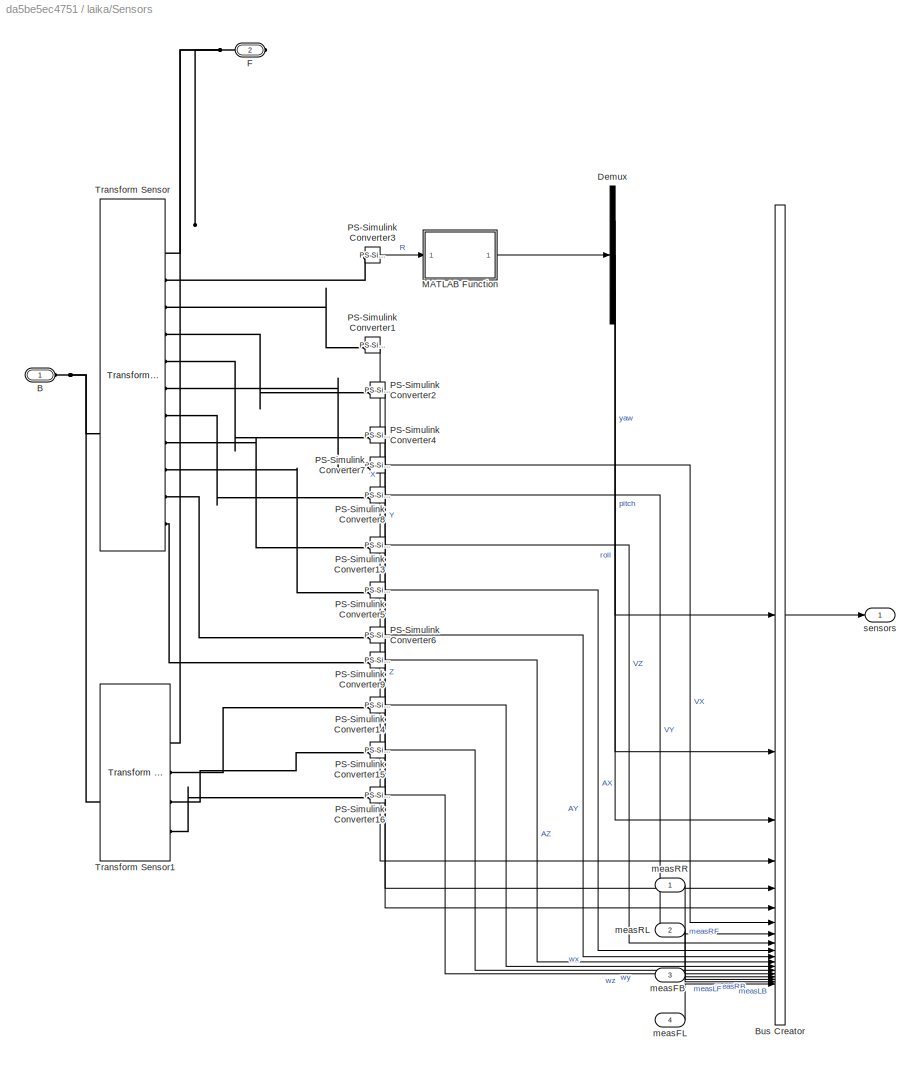
BLOCK [SubSystem] laika/Sensors
  PortSchema = {"entries":[{"content":{"sides":[{"content":{"connectorIds":["In1","In2","In3","In4"]},"type":"ConnectorPlacement.EquallySpacedRectSide","uuid":"3df3d218-abd4-4704-a7f5-393c9b3793f0"},{"content":{"connectorIds":["Out1"],"side":"RIGHT"},"type":"ConnectorPlacement.EquallySpacedRectSide","uuid":"04e38e81-ef79-4693-9892-346f49c2e321"},{"content":{"connectorIds":["LConn1"],"side":"TOP"},"type":"Connect...<+418ch>
BLOCK [PMIOPort] laika/Sensors/B
  Side = Left
BLOCK [BusCreator] laika/Sensors/Bus Creator
  DisplayOption = bar
  InheritFromInputs = on
  Inputs = 19
BLOCK [Demux] laika/Sensors/Demux
  Outputs = 3
BLOCK [PMIOPort] laika/Sensors/F
  Port = 2
  Side = Right
BLOCK [SubSystem] laika/Sensors/MATLAB Function
  ErrorFcn = Stateflow.Translate.translate
  PermitHierarchicalResolution = ExplicitOnly
  SFBlockType = MATLAB Function
  TreatAsAtomicUnit = on
BLOCK [Demux] laika/Sensors/MATLAB Function/ Demux 
  Outputs = 1
BLOCK [S-Function] laika/Sensors/MATLAB Function/ SFunction 
  EnableBusSupport = on
  FunctionName = sf_sfun
  PortCounts = [1 2]
  SFcnIsStateOwnerBlock = off
  SFunctionDeploymentMode = off
  Tag = Stateflow S-Function 2
BLOCK [Terminator] laika/Sensors/MATLAB Function/ Terminator 
BLOCK [Inport] laika/Sensors/MATLAB Function/R
BLOCK [Outport] laika/Sensors/MATLAB Function/ypr
BLOCK [Reference] laika/Sensors/PS-Simulink Converter1  REF=nesl_utility/PS-Simulink
Converter
  SourceBlock = nesl_utility/PS-Simulink\nConverter
  SourceType = PS-Simulink\nConverter
BLOCK [Reference] laika/Sensors/PS-Simulink Converter13  REF=nesl_utility/PS-Simulink
Converter
  SourceBlock = nesl_utility/PS-Simulink\nConverter
  SourceType = PS-Simulink\nConverter
BLOCK [Reference] laika/Sensors/PS-Simulink Converter14  REF=nesl_utility/PS-Simulink
Converter
  SourceBlock = nesl_utility/PS-Simulink\nConverter
  SourceType = PS-Simulink\nConverter
BLOCK [Reference] laika/Sensors/PS-Simulink Converter15  REF=nesl_utility/PS-Simulink
Converter
  SourceBlock = nesl_utility/PS-Simulink\nConverter
  SourceType = PS-Simulink\nConverter
BLOCK [Reference] laika/Sensors/PS-Simulink Converter16  REF=nesl_utility/PS-Simulink
Converter
  SourceBlock = nesl_utility/PS-Simulink\nConverter
  SourceType = PS-Simulink\nConverter
BLOCK [Reference] laika/Sensors/PS-Simulink Converter2  REF=nesl_utility/PS-Simulink
Converter
  SourceBlock = nesl_utility/PS-Simulink\nConverter
  SourceType = PS-Simulink\nConverter
BLOCK [Reference] laika/Sensors/PS-Simulink Converter3  REF=nesl_utility/PS-Simulink
Converter
  SourceBlock = nesl_utility/PS-Simulink\nConverter
  SourceType = PS-Simulink\nConverter
BLOCK [Reference] laika/Sensors/PS-Simulink Converter4  REF=nesl_utility/PS-Simulink
Converter
  SourceBlock = nesl_utility/PS-Simulink\nConverter
  SourceType = PS-Simulink\nConverter
BLOCK [Reference] laika/Sensors/PS-Simulink Converter5  REF=nesl_utility/PS-Simulink
Converter
  SourceBlock = nesl_utility/PS-Simulink\nConverter
  SourceType = PS-Simulink\nConverter
BLOCK [Reference] laika/Sensors/PS-Simulink Converter6  REF=nesl_utility/PS-Simulink
Converter
  SourceBlock = nesl_utility/PS-Simulink\nConverter
  SourceType = PS-Simulink\nConverter
BLOCK [Reference] laika/Sensors/PS-Simulink Converter7  REF=nesl_utility/PS-Simulink
Converter
  SourceBlock = nesl_utility/PS-Simulink\nConverter
  SourceType = PS-Simulink\nConverter
BLOCK [Reference] laika/Sensors/PS-Simulink Converter8  REF=nesl_utility/PS-Simulink
Converter
  SourceBlock = nesl_utility/PS-Simulink\nConverter
  SourceType = PS-Simulink\nConverter
BLOCK [Reference] laika/Sensors/PS-Simulink Converter9  REF=nesl_utility/PS-Simulink
Converter
  SourceBlock = nesl_utility/PS-Simulink\nConverter
  SourceType = PS-Simulink\nConverter
BLOCK [Reference] laika/Sensors/Transform Sensor  REF=sm_lib/Frames and
Transforms/Transform
Sensor
  SourceBlock = sm_lib/Frames and\nTransforms/Transform\nSensor
  SourceType = Transform\nSensor
BLOCK [Reference] laika/Sensors/Transform Sensor1  REF=sm_lib/Frames and
Transforms/Transform
Sensor
  SourceBlock = sm_lib/Frames and\nTransforms/Transform\nSensor
  SourceType = Transform\nSensor
BLOCK [Inport] laika/Sensors/measFB
  Port = 3
BLOCK [Inport] laika/Sensors/measFL
  Port = 4
BLOCK [Inport] laika/Sensors/measRL
  Port = 2
BLOCK [Inport] laika/Sensors/measRR
BLOCK [Outport] laika/Sensors/sensors
  VectorParamsAs1DForOutWhenUnconnected = off
BLOCK [Reference] laika/Solver Configuration  REF=nesl_utility/Solver
Configuration
  SourceBlock = nesl_utility/Solver\nConfiguration
  SourceType = Solver\nConfiguration
BLOCK [SubSystem] laika/Subsystem
BLOCK [BusCreator] laika/Subsystem/Bus Creator
  DisplayOption = bar
  InheritFromInputs = on
  Inputs = 5
BLOCK [PMIOPort] laika/Subsystem/Conn1
  Side = Left
BLOCK [Demux] laika/Subsystem/Demux
  Outputs = 3
BLOCK [SubSystem] laika/Subsystem/FR_hip_motor
BLOCK [PMIOPort] laika/Subsystem/FR_hip_motor/F
  Side = Left
BLOCK [PMIOPort] laika/Subsystem/FR_hip_motor/F1
  Port = 2
  Side = Right
BLOCK [Reference] laika/Subsystem/FR_hip_motor/FR_hip_motor_2_chassis_joint_AxisInvTransform  REF=sm_lib/Frames and
Transforms/Rigid
Transform
  SourceBlock = sm_lib/Frames and\nTransforms/Rigid\nTransform
  SourceType = Rigid\nTransform
BLOCK [Reference] laika/Subsystem/FR_hip_motor/FR_upper_leg_2_hip_motor_joint_AxisTransform  REF=sm_lib/Frames and
Transforms/Rigid
Transform
  SourceBlock = sm_lib/Frames and\nTransforms/Rigid\nTransform
  SourceType = Rigid\nTransform
BLOCK [Reference] laika/Subsystem/FR_hip_motor/FR_upper_leg_2_hip_motor_joint_OriginTransform  REF=sm_lib/Frames and
Transforms/Rigid
Transform
  SourceBlock = sm_lib/Frames and\nTransforms/Rigid\nTransform
  SourceType = Rigid\nTransform
BLOCK [Reference] laika/Subsystem/FR_hip_motor/Inertia  REF=sm_lib/Body Elements/Inertia
  SourceBlock = sm_lib/Body Elements/Inertia
  SourceType = Inertia
BLOCK [Reference] laika/Subsystem/FR_hip_motor/InertiaOriginTransform  REF=sm_lib/Frames and
Transforms/Rigid
Transform
  SourceBlock = sm_lib/Frames and\nTransforms/Rigid\nTransform
  SourceType = Rigid\nTransform
BLOCK [Reference] laika/Subsystem/FR_hip_motor/ReferenceFrame  REF=sm_lib/Frames and
Transforms/Reference
Frame
  SourceBlock = sm_lib/Frames and\nTransforms/Reference\nFrame
  SourceType = Reference\nFrame
BLOCK [Reference] laika/Subsystem/FR_hip_motor/Visual  REF=sm_lib/Body Elements/File Solid
  SourceBlock = sm_lib/Body Elements/File Solid
  SourceType = File Solid
BLOCK [Reference] laika/Subsystem/FR_hip_motor/VisualOriginTransform  REF=sm_lib/Frames and
Transforms/Rigid
Transform
  SourceBlock = sm_lib/Frames and\nTransforms/Rigid\nTransform
  SourceType = Rigid\nTransform
BLOCK [SubSystem] laika/Subsystem/FR_lower_leg
BLOCK [PMIOPort] laika/Subsystem/FR_lower_leg/F
  Side = Left
BLOCK [PMIOPort] laika/Subsystem/FR_lower_leg/F1
  Port = 2
  Side = Right
BLOCK [Reference] laika/Subsystem/FR_lower_leg/FR_lower_leg_2_upper_leg_joint_AxisInvTransform  REF=sm_lib/Frames and
Transforms/Rigid
Transform
  SourceBlock = sm_lib/Frames and\nTransforms/Rigid\nTransform
  SourceType = Rigid\nTransform
BLOCK [Reference] laika/Subsystem/FR_lower_leg/Inertia  REF=sm_lib/Body Elements/Inertia
  SourceBlock = sm_lib/Body Elements/Inertia
  SourceType = Inertia
BLOCK [Reference] laika/Subsystem/FR_lower_leg/InertiaOriginTransform  REF=sm_lib/Frames and
Transforms/Rigid
Transform
  SourceBlock = sm_lib/Frames and\nTransforms/Rigid\nTransform
  SourceType = Rigid\nTransform
BLOCK [Reference] laika/Subsystem/FR_lower_leg/ReferenceFrame  REF=sm_lib/Frames and
Transforms/Reference
Frame
  SourceBlock = sm_lib/Frames and\nTransforms/Reference\nFrame
  SourceType = Reference\nFrame
BLOCK [Reference] laika/Subsystem/FR_lower_leg/Visual  REF=sm_lib/Body Elements/File Solid
  SourceBlock = sm_lib/Body Elements/File Solid
  SourceType = File Solid
BLOCK [Reference] laika/Subsystem/FR_lower_leg/VisualOriginTransform  REF=sm_lib/Frames and
Transforms/Rigid
Transform
  SourceBlock = sm_lib/Frames and\nTransforms/Rigid\nTransform
  SourceType = Rigid\nTransform
BLOCK [Reference] laika/Subsystem/FR_lower_leg/jtoeFR_OriginTransform  REF=sm_lib/Frames and
Transforms/Rigid
Transform
  SourceBlock = sm_lib/Frames and\nTransforms/Rigid\nTransform
  SourceType = Rigid\nTransform
BLOCK [SubSystem] laika/Subsystem/FR_upper_leg
BLOCK [PMIOPort] laika/Subsystem/FR_upper_leg/F
  Side = Left
BLOCK [PMIOPort] laika/Subsystem/FR_upper_leg/F1
  Port = 2
  Side = Right
BLOCK [Reference] laika/Subsystem/FR_upper_leg/FR_lower_leg_2_upper_leg_joint_AxisTransform  REF=sm_lib/Frames and
Transforms/Rigid
Transform
  SourceBlock = sm_lib/Frames and\nTransforms/Rigid\nTransform
  SourceType = Rigid\nTransform
BLOCK [Reference] laika/Subsystem/FR_upper_leg/FR_lower_leg_2_upper_leg_joint_OriginTransform  REF=sm_lib/Frames and
Transforms/Rigid
Transform
  SourceBlock = sm_lib/Frames and\nTransforms/Rigid\nTransform
  SourceType = Rigid\nTransform
BLOCK [Reference] laika/Subsystem/FR_upper_leg/FR_upper_leg_2_hip_motor_joint_AxisInvTransform  REF=sm_lib/Frames and
Transforms/Rigid
Transform
  SourceBlock = sm_lib/Frames and\nTransforms/Rigid\nTransform
  SourceType = Rigid\nTransform
BLOCK [Reference] laika/Subsystem/FR_upper_leg/Inertia  REF=sm_lib/Body Elements/Inertia
  SourceBlock = sm_lib/Body Elements/Inertia
  SourceType = Inertia
BLOCK [Reference] laika/Subsystem/FR_upper_leg/InertiaOriginTransform  REF=sm_lib/Frames and
Transforms/Rigid
Transform
  SourceBlock = sm_lib/Frames and\nTransforms/Rigid\nTransform
  SourceType = Rigid\nTransform
BLOCK [Reference] laika/Subsystem/FR_upper_leg/ReferenceFrame  REF=sm_lib/Frames and
Transforms/Reference
Frame
  SourceBlock = sm_lib/Frames and\nTransforms/Reference\nFrame
  SourceType = Reference\nFrame
BLOCK [Reference] laika/Subsystem/FR_upper_leg/Visual  REF=sm_lib/Body Elements/File Solid
  SourceBlock = sm_lib/Body Elements/File Solid
  SourceType = File Solid
BLOCK [Reference] laika/Subsystem/FR_upper_leg/VisualOriginTransform  REF=sm_lib/Frames and
Transforms/Rigid
Transform
  SourceBlock = sm_lib/Frames and\nTransforms/Rigid\nTransform
  SourceType = Rigid\nTransform
BLOCK [PMIOPort] laika/Subsystem/G
  NameLocation = top
  Port = 2
  Side = Left
BLOCK [Gain] laika/Subsystem/Gain
  Gain = torque(1,1)
BLOCK [Gain] laika/Subsystem/Gain1
  Gain = torque(1,2)
BLOCK [Gain] laika/Subsystem/Gain2
  Gain = torque(1,3)
BLOCK [Inport] laika/Subsystem/InputFB
BLOCK [SubSystem] laika/Subsystem/Subsystem
BLOCK [BusCreator] laika/Subsystem/Subsystem/Bus Creator
  DisplayOption = bar
  InheritFromInputs = on
  Inputs = 3
BLOCK [PMIOPort] laika/Subsystem/Subsystem/Conn1
  Side = Left
BLOCK [PMIOPort] laika/Subsystem/Subsystem/Conn3
  Port = 2
  Side = Right
BLOCK [Reference] laika/Subsystem/Subsystem/FR_hip_motor_2_chassis_joint  REF=sm_lib/Joints/Revolute Joint
  SourceBlock = sm_lib/Joints/Revolute Joint
  SourceType = Revolute Joint
BLOCK [Reference] laika/Subsystem/Subsystem/PS-Simulink Converter1  REF=nesl_utility/PS-Simulink
Converter
  SourceBlock = nesl_utility/PS-Simulink\nConverter
  SourceType = PS-Simulink\nConverter
BLOCK [Reference] laika/Subsystem/Subsystem/PS-Simulink Converter2  REF=nesl_utility/PS-Simulink
Converter
  SourceBlock = nesl_utility/PS-Simulink\nConverter
  SourceType = PS-Simulink\nConverter
BLOCK [Outport] laika/Subsystem/Subsystem/Sensor
BLOCK [Reference] laika/Subsystem/Subsystem/Simulink-PS Converter  REF=nesl_utility/Simulink-PS
Converter
  SourceBlock = nesl_utility/Simulink-PS\nConverter
  SourceType = Simulink-PS\nConverter
BLOCK [Inport] laika/Subsystem/Subsystem/torque
BLOCK [SubSystem] laika/Subsystem/Subsystem1
BLOCK [BusCreator] laika/Subsystem/Subsystem1/Bus Creator
  DisplayOption = bar
  InheritFromInputs = on
  Inputs = 3
BLOCK [PMIOPort] laika/Subsystem/Subsystem1/Conn1
  Port = 2
  Side = Right
BLOCK [PMIOPort] laika/Subsystem/Subsystem1/Conn2
  Side = Left
BLOCK [Reference] laika/Subsystem/Subsystem1/FR_upper_leg_2_hip_motor_joint  REF=sm_lib/Joints/Revolute Joint
  SourceBlock = sm_lib/Joints/Revolute Joint
  SourceType = Revolute Joint
BLOCK [Reference] laika/Subsystem/Subsystem1/PS-Simulink Converter1  REF=nesl_utility/PS-Simulink
Converter
  SourceBlock = nesl_utility/PS-Simulink\nConverter
  SourceType = PS-Simulink\nConverter
BLOCK [Reference] laika/Subsystem/Subsystem1/PS-Simulink Converter2  REF=nesl_utility/PS-Simulink
Converter
  SourceBlock = nesl_utility/PS-Simulink\nConverter
  SourceType = PS-Simulink\nConverter
BLOCK [Outport] laika/Subsystem/Subsystem1/Sensor
BLOCK [Reference] laika/Subsystem/Subsystem1/Simulink-PS Converter  REF=nesl_utility/Simulink-PS
Converter
  SourceBlock = nesl_utility/Simulink-PS\nConverter
  SourceType = Simulink-PS\nConverter
BLOCK [Inport] laika/Subsystem/Subsystem1/torque
BLOCK [SubSystem] laika/Subsystem/Subsystem2
BLOCK [BusCreator] laika/Subsystem/Subsystem2/Bus Creator
  DisplayOption = bar
  InheritFromInputs = on
  Inputs = 3
BLOCK [PMIOPort] laika/Subsystem/Subsystem2/Conn1
  Side = Left
BLOCK [PMIOPort] laika/Subsystem/Subsystem2/Conn2
  Port = 2
  Side = Right
BLOCK [Reference] laika/Subsystem/Subsystem2/FR_lower_leg_2_upper_leg_joint  REF=sm_lib/Joints/Revolute Joint
  SourceBlock = sm_lib/Joints/Revolute Joint
  SourceType = Revolute Joint
BLOCK [Reference] laika/Subsystem/Subsystem2/PS-Simulink Converter1  REF=nesl_utility/PS-Simulink
Converter
  SourceBlock = nesl_utility/PS-Simulink\nConverter
  SourceType = PS-Simulink\nConverter
BLOCK [Reference] laika/Subsystem/Subsystem2/PS-Simulink Converter2  REF=nesl_utility/PS-Simulink
Converter
  SourceBlock = nesl_utility/PS-Simulink\nConverter
  SourceType = PS-Simulink\nConverter
BLOCK [Outport] laika/Subsystem/Subsystem2/Sensor
BLOCK [Reference] laika/Subsystem/Subsystem2/Simulink-PS Converter  REF=nesl_utility/Simulink-PS
Converter
  SourceBlock = nesl_utility/Simulink-PS\nConverter
  SourceType = Simulink-PS\nConverter
BLOCK [Inport] laika/Subsystem/Subsystem2/torque
BLOCK [Reference] laika/Subsystem/jtoeFR  REF=sm_lib/Joints/Weld Joint
  SourceBlock = sm_lib/Joints/Weld Joint
  SourceType = Weld Joint
BLOCK [Outport] laika/Subsystem/meas
  VectorParamsAs1DForOutWhenUnconnected = off
BLOCK [SubSystem] laika/Subsystem/toeFR
BLOCK [BusCreator] laika/Subsystem/toeFR/Bus Creator
  DisplayOption = bar
  InheritFromInputs = on
  Inputs = 3
BLOCK [PMIOPort] laika/Subsystem/toeFR/F
  Side = Left
BLOCK [Outport] laika/Subsystem/toeFR/Ff
  Port = 2
BLOCK [Outport] laika/Subsystem/toeFR/Fn
BLOCK [PMIOPort] laika/Subsystem/toeFR/G
  Port = 2
  Side = Right
BLOCK [Reference] laika/Subsystem/toeFR/Inertia  REF=sm_lib/Body Elements/Inertia
  NameLocation = right
  SourceBlock = sm_lib/Body Elements/Inertia
  SourceType = Inertia
BLOCK [Reference] laika/Subsystem/toeFR/InertiaOriginTransform  REF=sm_lib/Frames and
Transforms/Rigid
Transform
  NameLocation = left
  SourceBlock = sm_lib/Frames and\nTransforms/Rigid\nTransform
  SourceType = Rigid\nTransform
BLOCK [Reference] laika/Subsystem/toeFR/PS-Simulink Converter  REF=nesl_utility/PS-Simulink
Converter
  SourceBlock = nesl_utility/PS-Simulink\nConverter
  SourceType = PS-Simulink\nConverter
BLOCK [Reference] laika/Subsystem/toeFR/PS-Simulink Converter1  REF=nesl_utility/PS-Simulink
Converter
  SourceBlock = nesl_utility/PS-Simulink\nConverter
  SourceType = PS-Simulink\nConverter
BLOCK [Reference] laika/Subsystem/toeFR/PS-Simulink Converter2  REF=nesl_utility/PS-Simulink
Converter
  SourceBlock = nesl_utility/PS-Simulink\nConverter
  SourceType = PS-Simulink\nConverter
BLOCK [Reference] laika/Subsystem/toeFR/PS-Simulink Converter3  REF=nesl_utility/PS-Simulink
Converter
  SourceBlock = nesl_utility/PS-Simulink\nConverter
  SourceType = PS-Simulink\nConverter
BLOCK [Reference] laika/Subsystem/toeFR/PS-Simulink Converter4  REF=nesl_utility/PS-Simulink
Converter
  SourceBlock = nesl_utility/PS-Simulink\nConverter
  SourceType = PS-Simulink\nConverter
BLOCK [Reference] laika/Subsystem/toeFR/ReferenceFrame  REF=sm_lib/Frames and
Transforms/Reference
Frame
  NameLocation = left
  SourceBlock = sm_lib/Frames and\nTransforms/Reference\nFrame
  SourceType = Reference\nFrame
BLOCK [Reference] laika/Subsystem/toeFR/Spatial Contact Force  REF=sm_lib/Forces and
Torques/Spatial
Contact Force
  SourceBlock = sm_lib/Forces and\nTorques/Spatial\nContact Force
  SourceType = Spatial\nContact Force
BLOCK [Terminator] laika/Subsystem/toeFR/Terminator
BLOCK [Reference] laika/Subsystem/toeFR/Transform Sensor  REF=sm_lib/Frames and
Transforms/Transform
Sensor
  NameLocation = top
  SourceBlock = sm_lib/Frames and\nTransforms/Transform\nSensor
  SourceType = Transform\nSensor
BLOCK [Reference] laika/Subsystem/toeFR/Visual  REF=sm_lib/Body Elements/Spherical Solid
  NameLocation = top
  SourceBlock = sm_lib/Body Elements/Spherical Solid
  SourceType = Spherical Solid
BLOCK [Reference] laika/Subsystem/toeFR/VisualOriginTransform  REF=sm_lib/Frames and
Transforms/Rigid
Transform
  NameLocation = right
  SourceBlock = sm_lib/Frames and\nTransforms/Rigid\nTransform
  SourceType = Rigid\nTransform
BLOCK [Reference] laika/Subsystem/toeFR/World Frame  REF=sm_lib/Frames and
Transforms/World Frame
  SourceBlock = sm_lib/Frames and\nTransforms/World Frame
  SourceType = World Frame
BLOCK [SubSystem] laika/Subsystem1
BLOCK [BusCreator] laika/Subsystem1/Bus Creator
  DisplayOption = bar
  InheritFromInputs = on
  Inputs = 5
BLOCK [PMIOPort] laika/Subsystem1/Conn1
  Side = Left
BLOCK [Demux] laika/Subsystem1/Demux
  Outputs = 3
BLOCK [SubSystem] laika/Subsystem1/FL_hip_motor
BLOCK [PMIOPort] laika/Subsystem1/FL_hip_motor/F
  Side = Left
BLOCK [PMIOPort] laika/Subsystem1/FL_hip_motor/F1
  Port = 2
  Side = Right
BLOCK [Reference] laika/Subsystem1/FL_hip_motor/FL_hip_motor_2_chassis_joint_AxisInvTransform  REF=sm_lib/Frames and
Transforms/Rigid
Transform
  SourceBlock = sm_lib/Frames and\nTransforms/Rigid\nTransform
  SourceType = Rigid\nTransform
BLOCK [Reference] laika/Subsystem1/FL_hip_motor/FL_upper_leg_2_hip_motor_joint_AxisTransform  REF=sm_lib/Frames and
Transforms/Rigid
Transform
  SourceBlock = sm_lib/Frames and\nTransforms/Rigid\nTransform
  SourceType = Rigid\nTransform
BLOCK [Reference] laika/Subsystem1/FL_hip_motor/FL_upper_leg_2_hip_motor_joint_OriginTransform  REF=sm_lib/Frames and
Transforms/Rigid
Transform
  SourceBlock = sm_lib/Frames and\nTransforms/Rigid\nTransform
  SourceType = Rigid\nTransform
BLOCK [Reference] laika/Subsystem1/FL_hip_motor/Inertia  REF=sm_lib/Body Elements/Inertia
  SourceBlock = sm_lib/Body Elements/Inertia
  SourceType = Inertia
BLOCK [Reference] laika/Subsystem1/FL_hip_motor/InertiaOriginTransform  REF=sm_lib/Frames and
Transforms/Rigid
Transform
  SourceBlock = sm_lib/Frames and\nTransforms/Rigid\nTransform
  SourceType = Rigid\nTransform
BLOCK [Reference] laika/Subsystem1/FL_hip_motor/ReferenceFrame  REF=sm_lib/Frames and
Transforms/Reference
Frame
  SourceBlock = sm_lib/Frames and\nTransforms/Reference\nFrame
  SourceType = Reference\nFrame
BLOCK [Reference] laika/Subsystem1/FL_hip_motor/Visual  REF=sm_lib/Body Elements/File Solid
  SourceBlock = sm_lib/Body Elements/File Solid
  SourceType = File Solid
BLOCK [Reference] laika/Subsystem1/FL_hip_motor/VisualOriginTransform  REF=sm_lib/Frames and
Transforms/Rigid
Transform
  SourceBlock = sm_lib/Frames and\nTransforms/Rigid\nTransform
  SourceType = Rigid\nTransform
BLOCK [SubSystem] laika/Subsystem1/FL_lower_leg
BLOCK [PMIOPort] laika/Subsystem1/FL_lower_leg/F
  Side = Left
BLOCK [PMIOPort] laika/Subsystem1/FL_lower_leg/F1
  Port = 2
  Side = Right
BLOCK [Reference] laika/Subsystem1/FL_lower_leg/FL_lower_leg_2_upper_leg_joint_AxisInvTransform  REF=sm_lib/Frames and
Transforms/Rigid
Transform
  SourceBlock = sm_lib/Frames and\nTransforms/Rigid\nTransform
  SourceType = Rigid\nTransform
BLOCK [Reference] laika/Subsystem1/FL_lower_leg/Inertia  REF=sm_lib/Body Elements/Inertia
  SourceBlock = sm_lib/Body Elements/Inertia
  SourceType = Inertia
BLOCK [Reference] laika/Subsystem1/FL_lower_leg/InertiaOriginTransform  REF=sm_lib/Frames and
Transforms/Rigid
Transform
  SourceBlock = sm_lib/Frames and\nTransforms/Rigid\nTransform
  SourceType = Rigid\nTransform
BLOCK [Reference] laika/Subsystem1/FL_lower_leg/ReferenceFrame  REF=sm_lib/Frames and
Transforms/Reference
Frame
  SourceBlock = sm_lib/Frames and\nTransforms/Reference\nFrame
  SourceType = Reference\nFrame
BLOCK [Reference] laika/Subsystem1/FL_lower_leg/Visual  REF=sm_lib/Body Elements/File Solid
  SourceBlock = sm_lib/Body Elements/File Solid
  SourceType = File Solid
BLOCK [Reference] laika/Subsystem1/FL_lower_leg/VisualOriginTransform  REF=sm_lib/Frames and
Transforms/Rigid
Transform
  SourceBlock = sm_lib/Frames and\nTransforms/Rigid\nTransform
  SourceType = Rigid\nTransform
BLOCK [Reference] laika/Subsystem1/FL_lower_leg/jtoeFL_OriginTransform  REF=sm_lib/Frames and
Transforms/Rigid
Transform
  SourceBlock = sm_lib/Frames and\nTransforms/Rigid\nTransform
  SourceType = Rigid\nTransform
BLOCK [SubSystem] laika/Subsystem1/FL_upper_leg
BLOCK [PMIOPort] laika/Subsystem1/FL_upper_leg/F
  Side = Left
BLOCK [PMIOPort] laika/Subsystem1/FL_upper_leg/F1
  Port = 2
  Side = Right
BLOCK [Reference] laika/Subsystem1/FL_upper_leg/FL_lower_leg_2_upper_leg_joint_AxisTransform  REF=sm_lib/Frames and
Transforms/Rigid
Transform
  SourceBlock = sm_lib/Frames and\nTransforms/Rigid\nTransform
  SourceType = Rigid\nTransform
BLOCK [Reference] laika/Subsystem1/FL_upper_leg/FL_lower_leg_2_upper_leg_joint_OriginTransform  REF=sm_lib/Frames and
Transforms/Rigid
Transform
  SourceBlock = sm_lib/Frames and\nTransforms/Rigid\nTransform
  SourceType = Rigid\nTransform
BLOCK [Reference] laika/Subsystem1/FL_upper_leg/FL_upper_leg_2_hip_motor_joint_AxisInvTransform  REF=sm_lib/Frames and
Transforms/Rigid
Transform
  SourceBlock = sm_lib/Frames and\nTransforms/Rigid\nTransform
  SourceType = Rigid\nTransform
BLOCK [Reference] laika/Subsystem1/FL_upper_leg/Inertia  REF=sm_lib/Body Elements/Inertia
  SourceBlock = sm_lib/Body Elements/Inertia
  SourceType = Inertia
BLOCK [Reference] laika/Subsystem1/FL_upper_leg/InertiaOriginTransform  REF=sm_lib/Frames and
Transforms/Rigid
Transform
  SourceBlock = sm_lib/Frames and\nTransforms/Rigid\nTransform
  SourceType = Rigid\nTransform
BLOCK [Reference] laika/Subsystem1/FL_upper_leg/ReferenceFrame  REF=sm_lib/Frames and
Transforms/Reference
Frame
  SourceBlock = sm_lib/Frames and\nTransforms/Reference\nFrame
  SourceType = Reference\nFrame
BLOCK [Reference] laika/Subsystem1/FL_upper_leg/Visual  REF=sm_lib/Body Elements/File Solid
  SourceBlock = sm_lib/Body Elements/File Solid
  SourceType = File Solid
BLOCK [Reference] laika/Subsystem1/FL_upper_leg/VisualOriginTransform  REF=sm_lib/Frames and
Transforms/Rigid
Transform
  SourceBlock = sm_lib/Frames and\nTransforms/Rigid\nTransform
  SourceType = Rigid\nTransform
BLOCK [PMIOPort] laika/Subsystem1/G
  NameLocation = top
  Port = 2
  Side = Left
BLOCK [Gain] laika/Subsystem1/Gain
  Gain = torque(1,1)
BLOCK [Gain] laika/Subsystem1/Gain1
  Gain = torque(1,2)
BLOCK [Gain] laika/Subsystem1/Gain2
  Gain = torque(1,3)
BLOCK [Inport] laika/Subsystem1/InputFL
BLOCK [SubSystem] laika/Subsystem1/Subsystem
BLOCK [BusCreator] laika/Subsystem1/Subsystem/Bus Creator
  DisplayOption = bar
  InheritFromInputs = on
  Inputs = 3
BLOCK [PMIOPort] laika/Subsystem1/Subsystem/Conn1
  Side = Left
BLOCK [PMIOPort] laika/Subsystem1/Subsystem/Conn3
  Port = 2
  Side = Right
BLOCK [Reference] laika/Subsystem1/Subsystem/FL_hip_motor_2_chassis_joint  REF=sm_lib/Joints/Revolute Joint
  SourceBlock = sm_lib/Joints/Revolute Joint
  SourceType = Revolute Joint
BLOCK [Reference] laika/Subsystem1/Subsystem/PS-Simulink Converter1  REF=nesl_utility/PS-Simulink
Converter
  SourceBlock = nesl_utility/PS-Simulink\nConverter
  SourceType = PS-Simulink\nConverter
BLOCK [Reference] laika/Subsystem1/Subsystem/PS-Simulink Converter2  REF=nesl_utility/PS-Simulink
Converter
  SourceBlock = nesl_utility/PS-Simulink\nConverter
  SourceType = PS-Simulink\nConverter
BLOCK [Outport] laika/Subsystem1/Subsystem/Sensor
BLOCK [Reference] laika/Subsystem1/Subsystem/Simulink-PS Converter  REF=nesl_utility/Simulink-PS
Converter
  SourceBlock = nesl_utility/Simulink-PS\nConverter
  SourceType = Simulink-PS\nConverter
BLOCK [Inport] laika/Subsystem1/Subsystem/torque
BLOCK [SubSystem] laika/Subsystem1/Subsystem1
BLOCK [BusCreator] laika/Subsystem1/Subsystem1/Bus Creator
  DisplayOption = bar
  InheritFromInputs = on
  Inputs = 3
BLOCK [PMIOPort] laika/Subsystem1/Subsystem1/Conn1
  Port = 2
  Side = Right
BLOCK [PMIOPort] laika/Subsystem1/Subsystem1/Conn2
  Side = Left
BLOCK [Reference] laika/Subsystem1/Subsystem1/FL_upper_leg_2_hip_motor_joint  REF=sm_lib/Joints/Revolute Joint
  SourceBlock = sm_lib/Joints/Revolute Joint
  SourceType = Revolute Joint
BLOCK [Reference] laika/Subsystem1/Subsystem1/PS-Simulink Converter1  REF=nesl_utility/PS-Simulink
Converter
  SourceBlock = nesl_utility/PS-Simulink\nConverter
  SourceType = PS-Simulink\nConverter
BLOCK [Reference] laika/Subsystem1/Subsystem1/PS-Simulink Converter2  REF=nesl_utility/PS-Simulink
Converter
  SourceBlock = nesl_utility/PS-Simulink\nConverter
  SourceType = PS-Simulink\nConverter
BLOCK [Outport] laika/Subsystem1/Subsystem1/Sensor
BLOCK [Reference] laika/Subsystem1/Subsystem1/Simulink-PS Converter  REF=nesl_utility/Simulink-PS
Converter
  SourceBlock = nesl_utility/Simulink-PS\nConverter
  SourceType = Simulink-PS\nConverter
BLOCK [Inport] laika/Subsystem1/Subsystem1/torque
BLOCK [SubSystem] laika/Subsystem1/Subsystem2
BLOCK [BusCreator] laika/Subsystem1/Subsystem2/Bus Creator
  DisplayOption = bar
  InheritFromInputs = on
  Inputs = 3
BLOCK [PMIOPort] laika/Subsystem1/Subsystem2/Conn1
  Side = Left
BLOCK [PMIOPort] laika/Subsystem1/Subsystem2/Conn2
  Port = 2
  Side = Right
BLOCK [Reference] laika/Subsystem1/Subsystem2/FL_lower_leg_2_upper_leg_joint  REF=sm_lib/Joints/Revolute Joint
  SourceBlock = sm_lib/Joints/Revolute Joint
  SourceType = Revolute Joint
BLOCK [Reference] laika/Subsystem1/Subsystem2/PS-Simulink Converter1  REF=nesl_utility/PS-Simulink
Converter
  SourceBlock = nesl_utility/PS-Simulink\nConverter
  SourceType = PS-Simulink\nConverter
BLOCK [Reference] laika/Subsystem1/Subsystem2/PS-Simulink Converter2  REF=nesl_utility/PS-Simulink
Converter
  SourceBlock = nesl_utility/PS-Simulink\nConverter
  SourceType = PS-Simulink\nConverter
BLOCK [Outport] laika/Subsystem1/Subsystem2/Sensor
BLOCK [Reference] laika/Subsystem1/Subsystem2/Simulink-PS Converter  REF=nesl_utility/Simulink-PS
Converter
  SourceBlock = nesl_utility/Simulink-PS\nConverter
  SourceType = Simulink-PS\nConverter
BLOCK [Inport] laika/Subsystem1/Subsystem2/torque
BLOCK [Reference] laika/Subsystem1/jtoeFL  REF=sm_lib/Joints/Weld Joint
  SourceBlock = sm_lib/Joints/Weld Joint
  SourceType = Weld Joint
BLOCK [Outport] laika/Subsystem1/meas
  VectorParamsAs1DForOutWhenUnconnected = off
BLOCK [SubSystem] laika/Subsystem1/toeFL
BLOCK [BusCreator] laika/Subsystem1/toeFL/Bus Creator
  DisplayOption = bar
  InheritFromInputs = on
  Inputs = 3
BLOCK [PMIOPort] laika/Subsystem1/toeFL/F
  Side = Left
BLOCK [Outport] laika/Subsystem1/toeFL/Ff
  Port = 2
BLOCK [Outport] laika/Subsystem1/toeFL/Fn
BLOCK [PMIOPort] laika/Subsystem1/toeFL/G
  Port = 2
  Side = Right
BLOCK [Reference] laika/Subsystem1/toeFL/Inertia  REF=sm_lib/Body Elements/Inertia
  SourceBlock = sm_lib/Body Elements/Inertia
  SourceType = Inertia
BLOCK [Reference] laika/Subsystem1/toeFL/InertiaOriginTransform  REF=sm_lib/Frames and
Transforms/Rigid
Transform
  SourceBlock = sm_lib/Frames and\nTransforms/Rigid\nTransform
  SourceType = Rigid\nTransform
BLOCK [Reference] laika/Subsystem1/toeFL/PS-Simulink Converter  REF=nesl_utility/PS-Simulink
Converter
  SourceBlock = nesl_utility/PS-Simulink\nConverter
  SourceType = PS-Simulink\nConverter
BLOCK [Reference] laika/Subsystem1/toeFL/PS-Simulink Converter1  REF=nesl_utility/PS-Simulink
Converter
  SourceBlock = nesl_utility/PS-Simulink\nConverter
  SourceType = PS-Simulink\nConverter
BLOCK [Reference] laika/Subsystem1/toeFL/PS-Simulink Converter2  REF=nesl_utility/PS-Simulink
Converter
  SourceBlock = nesl_utility/PS-Simulink\nConverter
  SourceType = PS-Simulink\nConverter
BLOCK [Reference] laika/Subsystem1/toeFL/PS-Simulink Converter3  REF=nesl_utility/PS-Simulink
Converter
  SourceBlock = nesl_utility/PS-Simulink\nConverter
  SourceType = PS-Simulink\nConverter
BLOCK [Reference] laika/Subsystem1/toeFL/PS-Simulink Converter4  REF=nesl_utility/PS-Simulink
Converter
  SourceBlock = nesl_utility/PS-Simulink\nConverter
  SourceType = PS-Simulink\nConverter
BLOCK [Reference] laika/Subsystem1/toeFL/ReferenceFrame  REF=sm_lib/Frames and
Transforms/Reference
Frame
  SourceBlock = sm_lib/Frames and\nTransforms/Reference\nFrame
  SourceType = Reference\nFrame
BLOCK [Reference] laika/Subsystem1/toeFL/Spatial Contact Force  REF=sm_lib/Forces and
Torques/Spatial
Contact Force
  SourceBlock = sm_lib/Forces and\nTorques/Spatial\nContact Force
  SourceType = Spatial\nContact Force
BLOCK [Terminator] laika/Subsystem1/toeFL/Terminator
BLOCK [Reference] laika/Subsystem1/toeFL/Transform Sensor  REF=sm_lib/Frames and
Transforms/Transform
Sensor
  NameLocation = top
  SourceBlock = sm_lib/Frames and\nTransforms/Transform\nSensor
  SourceType = Transform\nSensor
BLOCK [Reference] laika/Subsystem1/toeFL/Visual  REF=sm_lib/Body Elements/Spherical Solid
  SourceBlock = sm_lib/Body Elements/Spherical Solid
  SourceType = Spherical Solid
BLOCK [Reference] laika/Subsystem1/toeFL/VisualOriginTransform  REF=sm_lib/Frames and
Transforms/Rigid
Transform
  SourceBlock = sm_lib/Frames and\nTransforms/Rigid\nTransform
  SourceType = Rigid\nTransform
BLOCK [Reference] laika/Subsystem1/toeFL/World Frame  REF=sm_lib/Frames and
Transforms/World Frame
  SourceBlock = sm_lib/Frames and\nTransforms/World Frame
  SourceType = World Frame
BLOCK [Reference] laika/World  REF=sm_lib/Frames and
Transforms/World Frame
  SourceBlock = sm_lib/Frames and\nTransforms/World Frame
  SourceType = World Frame
BLOCK [Reference] laika/World Plane  REF=sm_lib/Body Elements/Brick Solid
  NameLocation = right
  SourceBlock = sm_lib/Body Elements/Brick Solid
  SourceType = Brick Solid
BLOCK [SubSystem] laika/chassis
  PortSchema = {"entries":[{"content":{"sides":[{"content":{"connectorIds":["LConn1"]},"type":"ConnectorPlacement.EquallySpacedRectSide","uuid":"e8b07a4b-cdda-468b-a417-21e1e893ca66"},{"content":{"connectorIds":["RConn1","RConn2","RConn3","RConn4"],"side":"RIGHT"},"type":"ConnectorPlacement.EquallySpacedRectSide","uuid":"0565d4ec-0cbc-4c5e-bd83-3e7a8f475fde"},{"content":{"side":"TOP"},"type":"ConnectorPlacement....<+406ch>
BLOCK [Reference] laika/chassis/6-DOF Joint  REF=sm_lib/Joints/6-DOF Joint
  SourceBlock = sm_lib/Joints/6-DOF Joint
  SourceType = 6-DOF Joint
BLOCK [PMIOPort] laika/chassis/F
  Side = Left
BLOCK [PMIOPort] laika/chassis/F1
  Port = 5
  Side = Right
BLOCK [PMIOPort] laika/chassis/F2
  Port = 4
  Side = Right
BLOCK [PMIOPort] laika/chassis/F3
  Port = 3
  Side = Right
BLOCK [PMIOPort] laika/chassis/F4
  Port = 2
  Side = Right
BLOCK [Reference] laika/chassis/FL_hip_motor_2_chassis_joint_AxisTransform  REF=sm_lib/Frames and
Transforms/Rigid
Transform
  SourceBlock = sm_lib/Frames and\nTransforms/Rigid\nTransform
  SourceType = Rigid\nTransform
BLOCK [Reference] laika/chassis/FL_hip_motor_2_chassis_joint_OriginTransform  REF=sm_lib/Frames and
Transforms/Rigid
Transform
  SourceBlock = sm_lib/Frames and\nTransforms/Rigid\nTransform
  SourceType = Rigid\nTransform
BLOCK [Reference] laika/chassis/FR_hip_motor_2_chassis_joint_AxisTransform  REF=sm_lib/Frames and
Transforms/Rigid
Transform
  SourceBlock = sm_lib/Frames and\nTransforms/Rigid\nTransform
  SourceType = Rigid\nTransform
BLOCK [Reference] laika/chassis/FR_hip_motor_2_chassis_joint_OriginTransform  REF=sm_lib/Frames and
Transforms/Rigid
Transform
  SourceBlock = sm_lib/Frames and\nTransforms/Rigid\nTransform
  SourceType = Rigid\nTransform
BLOCK [Reference] laika/chassis/Inertia  REF=sm_lib/Body Elements/Inertia
  SourceBlock = sm_lib/Body Elements/Inertia
  SourceType = Inertia
BLOCK [Reference] laika/chassis/InertiaOriginTransform  REF=sm_lib/Frames and
Transforms/Rigid
Transform
  SourceBlock = sm_lib/Frames and\nTransforms/Rigid\nTransform
  SourceType = Rigid\nTransform
BLOCK [Reference] laika/chassis/RL_hip_motor_2_chassis_joint_AxisTransform  REF=sm_lib/Frames and
Transforms/Rigid
Transform
  SourceBlock = sm_lib/Frames and\nTransforms/Rigid\nTransform
  SourceType = Rigid\nTransform
BLOCK [Reference] laika/chassis/RL_hip_motor_2_chassis_joint_OriginTransform  REF=sm_lib/Frames and
Transforms/Rigid
Transform
  SourceBlock = sm_lib/Frames and\nTransforms/Rigid\nTransform
  SourceType = Rigid\nTransform
BLOCK [Reference] laika/chassis/RR_hip_motor_2_chassis_joint_AxisTransform  REF=sm_lib/Frames and
Transforms/Rigid
Transform
  SourceBlock = sm_lib/Frames and\nTransforms/Rigid\nTransform
  SourceType = Rigid\nTransform
BLOCK [Reference] laika/chassis/RR_hip_motor_2_chassis_joint_OriginTransform  REF=sm_lib/Frames and
Transforms/Rigid
Transform
  SourceBlock = sm_lib/Frames and\nTransforms/Rigid\nTransform
  SourceType = Rigid\nTransform
BLOCK [Reference] laika/chassis/ReferenceFrame  REF=sm_lib/Frames and
Transforms/Reference
Frame
  NameLocation = left
  SourceBlock = sm_lib/Frames and\nTransforms/Reference\nFrame
  SourceType = Reference\nFrame
BLOCK [Reference] laika/chassis/Visual  REF=sm_lib/Body Elements/File Solid
  SourceBlock = sm_lib/Body Elements/File Solid
  SourceType = File Solid
BLOCK [Reference] laika/chassis/VisualOriginTransform  REF=sm_lib/Frames and
Transforms/Rigid
Transform
  SourceBlock = sm_lib/Frames and\nTransforms/Rigid\nTransform
  SourceType = Rigid\nTransform
BLOCK [PMIOPort] laika/chassis/bodyToWorldPosition
  Port = 6
  Side = Right
BLOCK [Reference] laika/chassis/offset1  REF=sm_lib/Frames and
Transforms/Rigid
Transform
  SourceBlock = sm_lib/Frames and\nTransforms/Rigid\nTransform
  SourceType = Rigid\nTransform
BLOCK [Reference] laika/chassis/offset2  REF=sm_lib/Frames and
Transforms/Rigid
Transform
  SourceBlock = sm_lib/Frames and\nTransforms/Rigid\nTransform
  SourceType = Rigid\nTransform
BLOCK [Inport] laika/inputFB
  Port = 3
BLOCK [Inport] laika/inputFL
  Port = 4
BLOCK [Inport] laika/inputRR
BLOCK [Reference] laika/offset  REF=sm_lib/Frames and
Transforms/Rigid
Transform
  NameLocation = left
  SourceBlock = sm_lib/Frames and\nTransforms/Rigid\nTransform
  SourceType = Rigid\nTransform
BLOCK [Outport] laika/sensors
BLOCK [SubSystem] leg gait
BLOCK [BusCreator] leg gait/Bus Creator
  DisplayOption = bar
  InheritFromInputs = on
  Inputs = 2
  NameLocation = top
BLOCK [BusCreator] leg gait/Bus Creator1
  DisplayOption = bar
  InheritFromInputs = on
  Inputs = 3
BLOCK [BusCreator] leg gait/Bus Creator2
  DisplayOption = bar
  InheritFromInputs = on
  Inputs = 3
BLOCK [BusCreator] leg gait/Bus Creator3
  DisplayOption = bar
  InheritFromInputs = on
  Inputs = 3
BLOCK [BusCreator] leg gait/Bus Creator4
  DisplayOption = bar
  InheritFromInputs = on
  Inputs = 3
BLOCK [BusCreator] leg gait/Bus Creator5
  DisplayOption = bar
  InheritFromInputs = on
  Inputs = 4
BLOCK [Clock] leg gait/Clock1
BLOCK [Constant] leg gait/Constant1
  Value = 0.5
BLOCK [Constant] leg gait/Constant10
  Value = 0.01
BLOCK [Constant] leg gait/Constant11
  Value = 0.01
BLOCK [Constant] leg gait/Constant12
  Value = 0.45
BLOCK [Constant] leg gait/Constant13
  Value = 0.02
BLOCK [Constant] leg gait/Constant14
  Value = 0.02
BLOCK [Constant] leg gait/Constant15
  Value = 0.40
BLOCK [Constant] leg gait/Constant2
  Value = -0.02
BLOCK [Constant] leg gait/Constant5
  Value = -0.02
BLOCK [Constant] leg gait/Constant6
  Value = 0.40
BLOCK [Constant] leg gait/Constant7
  Value = -0.035
BLOCK [Constant] leg gait/Constant8
  Value = -0.035
BLOCK [Constant] leg gait/Constant9
  Value = 0.45
BLOCK [Outport] leg gait/InputRL
BLOCK [SubSystem] leg gait/SOLUTION
BLOCK [Inport] leg gait/SOLUTION/BPoints
  Port = 3
BLOCK [BusSelector] leg gait/SOLUTION/Bus Selector5
  OutputSignals = P0,P1,P2,P3
BLOCK [BusSelector] leg gait/SOLUTION/Bus Selector6
  OutputSignals = P0x,P0z
BLOCK [BusSelector] leg gait/SOLUTION/Bus Selector7
  OutputSignals = P1x,P1z
BLOCK [BusSelector] leg gait/SOLUTION/Bus Selector8
  OutputSignals = P2x,P2z
BLOCK [BusSelector] leg gait/SOLUTION/Bus Selector9
  OutputSignals = P3x,P3z
BLOCK [Gain] leg gait/SOLUTION/Gain
  Gain = -180/pi
BLOCK [Constant] leg gait/SOLUTION/Length lower Limb
  Value = 0.2510
BLOCK [Constant] leg gait/SOLUTION/Length upper Limb
  Value = 0.2522
BLOCK [SubSystem] leg gait/SOLUTION/Longitudinal angles
  ErrorFcn = Stateflow.Translate.translate
  PermitHierarchicalResolution = ExplicitOnly
  SFBlockType = MATLAB Function
  TreatAsAtomicUnit = on
BLOCK [Demux] leg gait/SOLUTION/Longitudinal angles/ Demux 
  Outputs = 1
BLOCK [S-Function] leg gait/SOLUTION/Longitudinal angles/ SFunction 
  EnableBusSupport = on
  FunctionName = sf_sfun
  PortCounts = [4 3]
  SFcnIsStateOwnerBlock = off
  SFunctionDeploymentMode = off
  Tag = Stateflow S-Function 81
BLOCK [Terminator] leg gait/SOLUTION/Longitudinal angles/ Terminator 
BLOCK [Inport] leg gait/SOLUTION/Longitudinal angles/L1
  Port = 3
BLOCK [Inport] leg gait/SOLUTION/Longitudinal angles/L2
  Port = 4
BLOCK [Outport] leg gait/SOLUTION/Longitudinal angles/theta1
BLOCK [Outport] leg gait/SOLUTION/Longitudinal angles/theta2
  Port = 2
BLOCK [Inport] leg gait/SOLUTION/Longitudinal angles/x
BLOCK [Inport] leg gait/SOLUTION/Longitudinal angles/y
  Port = 2
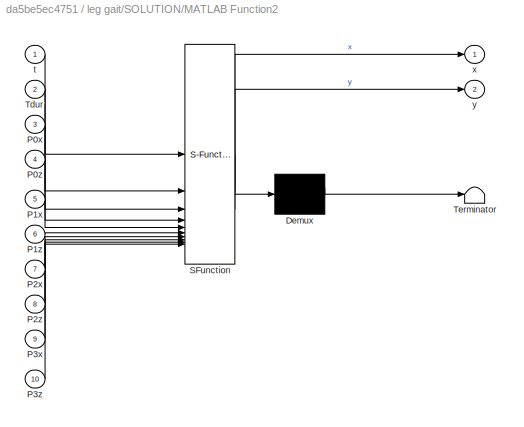
BLOCK [SubSystem] leg gait/SOLUTION/MATLAB Function2
  ErrorFcn = Stateflow.Translate.translate
  PermitHierarchicalResolution = ExplicitOnly
  SFBlockType = MATLAB Function
  TreatAsAtomicUnit = on
BLOCK [Demux] leg gait/SOLUTION/MATLAB Function2/ Demux 
  Outputs = 1
BLOCK [S-Function] leg gait/SOLUTION/MATLAB Function2/ SFunction 
  EnableBusSupport = on
  FunctionName = sf_sfun
  PortCounts = [10 3]
  SFcnIsStateOwnerBlock = off
  SFunctionDeploymentMode = off
  Tag = Stateflow S-Function 94
BLOCK [Terminator] leg gait/SOLUTION/MATLAB Function2/ Terminator 
BLOCK [Inport] leg gait/SOLUTION/MATLAB Function2/P0x
  Port = 3
BLOCK [Inport] leg gait/SOLUTION/MATLAB Function2/P0z
  Port = 4
BLOCK [Inport] leg gait/SOLUTION/MATLAB Function2/P1x
  Port = 5
BLOCK [Inport] leg gait/SOLUTION/MATLAB Function2/P1z
  Port = 6
BLOCK [Inport] leg gait/SOLUTION/MATLAB Function2/P2x
  Port = 7
BLOCK [Inport] leg gait/SOLUTION/MATLAB Function2/P2z
  Port = 8
BLOCK [Inport] leg gait/SOLUTION/MATLAB Function2/P3x
  Port = 9
BLOCK [Inport] leg gait/SOLUTION/MATLAB Function2/P3z
  Port = 10
BLOCK [Inport] leg gait/SOLUTION/MATLAB Function2/Tdur
  Port = 2
BLOCK [Inport] leg gait/SOLUTION/MATLAB Function2/t
BLOCK [Outport] leg gait/SOLUTION/MATLAB Function2/x
BLOCK [Outport] leg gait/SOLUTION/MATLAB Function2/y
  Port = 2
BLOCK [Math] leg gait/SOLUTION/Mod
  Operator = mod
BLOCK [Gain] leg gait/SOLUTION/Radians -> Degrees
  Gain = -180/pi
BLOCK [Scope] leg gait/SOLUTION/Scope
  Floating = off
  NumInputPorts = 2
  ScopeSpecificationString = Simulink.scopes.TimeScopeBlockCfg('CurrentConfiguration', extmgr.ConfigurationSet(extmgr.Configuration('Core','General UI',true),extmgr.Configuration('Core','Source UI',true),extmgr.Configuration('Sources','WiredSimulink',true,'DataLoggingVariableName','ScopeData1'),extmgr.Configuration('Visuals','Time Domain',true,'SerializedDisplays',{struct('MinYLimReal','-80.27036','MaxYLimReal','-24.62931','Y...<+1514ch>
BLOCK [Outport] leg gait/SOLUTION/hip
BLOCK [Outport] leg gait/SOLUTION/knee
  Port = 2
BLOCK [Inport] leg gait/SOLUTION/t
BLOCK [Inport] leg gait/SOLUTION/tdur
  Port = 2
ANNOTATION (root): 1) Split up the 'Bus' that contains the Bezier points (use a 'Bus Selector' block) and connect the signals with the first Matlab function block. 2) Write a code that calculates the path of a foot: - initial position is the mid point between P0 and P3 - time-ratio of support phase to swing phase is 3:1 - foot starts with support phase, swings to the front, and goes back to initial position again - ...<+374ch>
ANNOTATION leg gait: Declaration of Bezier Points
ANNOTATION leg gait/SOLUTION: 1) Split up the 'Bus' that contains the Bezier points (use a 'Bus Selector' block) and connect the signals with the first Matlab function block. 2) Write a code that calculates the path of a foot: - initial position is the mid point between P0 and P3 - time-ratio of support phase to swing phase is 3:1 - foot starts with support phase, swings to the front, and goes back to initial position again - ...<+374ch>
ANNOTATION leg gait/SOLUTION: Create a function that calculates the angle of the hip and the knee joint depending on the x and y values.
ANNOTATION leg gait/SOLUTION: Create a function that calculates the path of a foot in one cycle. Time (t) goes from 0 to the length of one cycle (tdur) and is then reset to 0 again.
LINE Bus Selector:1 -> Scope:1
LINE Bus Selector:2 -> Scope:2
LINE Bus Selector:3 -> Scope:3
LINE Bus Selector:4 -> Scope1:1
LINE Bus Selector:5 -> Scope1:2
LINE Bus Selector:6 -> Scope1:3
LINE RL/Bus Creator:1 -> RL/meas:1
LINE RL/Bus Selector:1 -> RL/Subsystem1:1
LINE RL/Bus Selector:2 -> RL/Subsystem2:1
LINE RL/InputRL:1 -> RL/Bus Selector:1
LINE RL/Subsystem/Bus Creator:1 -> RL/Subsystem/Sensor:1
LINE RL/Subsystem/PS-Simulink Converter1:1 -> RL/Subsystem/Bus Creator:2
LINE RL/Subsystem/PS-Simulink Converter2:1 -> RL/Subsystem/Bus Creator:3
NET RL/Subsystem/torque:1 -> RL/Subsystem/Bus Creator:1, RL/Subsystem/Simulink-PS Converter:1
LINE RL/Subsystem1/Bus Creator:1 -> RL/Subsystem1/Sensor:1
LINE RL/Subsystem1/PS-Simulink Converter1:1 -> RL/Subsystem1/Bus Creator:2
LINE RL/Subsystem1/PS-Simulink Converter2:1 -> RL/Subsystem1/Bus Creator:3
NET RL/Subsystem1/torque:1 -> RL/Subsystem1/Bus Creator:1, RL/Subsystem1/Simulink-PS Converter:1
LINE RL/Subsystem1:1 -> RL/Bus Creator:2
LINE RL/Subsystem2/Bus Creator:1 -> RL/Subsystem2/Sensor:1
LINE RL/Subsystem2/PS-Simulink Converter1:1 -> RL/Subsystem2/Bus Creator:2
LINE RL/Subsystem2/PS-Simulink Converter2:1 -> RL/Subsystem2/Bus Creator:3
NET RL/Subsystem2/torque:1 -> RL/Subsystem2/Bus Creator:1, RL/Subsystem2/Simulink-PS Converter:1
LINE RL/Subsystem2:1 -> RL/Bus Creator:3
LINE RL/Subsystem:1 -> RL/Bus Creator:1
LINE RL/toeRL/Bus Creator:1 -> RL/toeRL/Terminator:1
LINE RL/toeRL/PS-Simulink Converter1:1 -> RL/toeRL/Ff:1
LINE RL/toeRL/PS-Simulink Converter2:1 -> RL/toeRL/Bus Creator:1
LINE RL/toeRL/PS-Simulink Converter3:1 -> RL/toeRL/Bus Creator:2
LINE RL/toeRL/PS-Simulink Converter4:1 -> RL/toeRL/Bus Creator:3
LINE RL/toeRL/PS-Simulink Converter:1 -> RL/toeRL/Fn:1
LINE RL/toeRL:1 -> RL/Bus Creator:4
LINE RL/toeRL:2 -> RL/Bus Creator:5
LINE laika/InputRL:1 -> laika/RL:1
LINE laika/RL/Bus Creator:1 -> laika/RL/meas:1
LINE laika/RL/Bus Selector:1 -> laika/RL/Subsystem1:1
LINE laika/RL/Bus Selector:2 -> laika/RL/Subsystem2:1
LINE laika/RL/InputRL:1 -> laika/RL/Bus Selector:1
LINE laika/RL/Subsystem/Bus Creator:1 -> laika/RL/Subsystem/Sensor:1
LINE laika/RL/Subsystem/PS-Simulink Converter1:1 -> laika/RL/Subsystem/Bus Creator:2
LINE laika/RL/Subsystem/PS-Simulink Converter2:1 -> laika/RL/Subsystem/Bus Creator:3
NET laika/RL/Subsystem/torque:1 -> laika/RL/Subsystem/Bus Creator:1, laika/RL/Subsystem/Simulink-PS Converter:1
LINE laika/RL/Subsystem1/Bus Creator:1 -> laika/RL/Subsystem1/Sensor:1
LINE laika/RL/Subsystem1/PS-Simulink Converter1:1 -> laika/RL/Subsystem1/Bus Creator:2
LINE laika/RL/Subsystem1/PS-Simulink Converter2:1 -> laika/RL/Subsystem1/Bus Creator:3
NET laika/RL/Subsystem1/torque:1 -> laika/RL/Subsystem1/Bus Creator:1, laika/RL/Subsystem1/Simulink-PS Converter:1
LINE laika/RL/Subsystem1:1 -> laika/RL/Bus Creator:2
LINE laika/RL/Subsystem2/Bus Creator:1 -> laika/RL/Subsystem2/Sensor:1
LINE laika/RL/Subsystem2/PS-Simulink Converter1:1 -> laika/RL/Subsystem2/Bus Creator:2
LINE laika/RL/Subsystem2/PS-Simulink Converter2:1 -> laika/RL/Subsystem2/Bus Creator:3
NET laika/RL/Subsystem2/torque:1 -> laika/RL/Subsystem2/Bus Creator:1, laika/RL/Subsystem2/Simulink-PS Converter:1
LINE laika/RL/Subsystem2:1 -> laika/RL/Bus Creator:3
LINE laika/RL/Subsystem:1 -> laika/RL/Bus Creator:1
LINE laika/RL/toeRL/Bus Creator:1 -> laika/RL/toeRL/Terminator:1
LINE laika/RL/toeRL/PS-Simulink Converter1:1 -> laika/RL/toeRL/Ff:1
LINE laika/RL/toeRL/PS-Simulink Converter2:1 -> laika/RL/toeRL/Bus Creator:1
LINE laika/RL/toeRL/PS-Simulink Converter3:1 -> laika/RL/toeRL/Bus Creator:2
LINE laika/RL/toeRL/PS-Simulink Converter4:1 -> laika/RL/toeRL/Bus Creator:3
LINE laika/RL/toeRL/PS-Simulink Converter:1 -> laika/RL/toeRL/Fn:1
LINE laika/RL/toeRL:1 -> laika/RL/Bus Creator:4
LINE laika/RL/toeRL:2 -> laika/RL/Bus Creator:5
LINE laika/RL:1 -> laika/Sensors:2
LINE laika/RR/Bus Creator:1 -> laika/RR/meas:1
LINE laika/RR/Bus Selector:1 -> laika/RR/Subsystem1:1
LINE laika/RR/Bus Selector:2 -> laika/RR/Subsystem2:1
LINE laika/RR/InputRR:1 -> laika/RR/Bus Selector:1
LINE laika/RR/Subsystem/Bus Creator:1 -> laika/RR/Subsystem/Sensor:1
LINE laika/RR/Subsystem/PS-Simulink Converter1:1 -> laika/RR/Subsystem/Bus Creator:2
LINE laika/RR/Subsystem/PS-Simulink Converter2:1 -> laika/RR/Subsystem/Bus Creator:3
NET laika/RR/Subsystem/torque:1 -> laika/RR/Subsystem/Bus Creator:1, laika/RR/Subsystem/Simulink-PS Converter:1
LINE laika/RR/Subsystem1/Bus Creator:1 -> laika/RR/Subsystem1/Sensor:1
LINE laika/RR/Subsystem1/PS-Simulink Converter1:1 -> laika/RR/Subsystem1/Bus Creator:2
LINE laika/RR/Subsystem1/PS-Simulink Converter2:1 -> laika/RR/Subsystem1/Bus Creator:3
NET laika/RR/Subsystem1/torque:1 -> laika/RR/Subsystem1/Bus Creator:1, laika/RR/Subsystem1/Simulink-PS Converter:1
LINE laika/RR/Subsystem1:1 -> laika/RR/Bus Creator:2
LINE laika/RR/Subsystem2/Bus Creator:1 -> laika/RR/Subsystem2/Sensor:1
LINE laika/RR/Subsystem2/PS-Simulink Converter1:1 -> laika/RR/Subsystem2/Bus Creator:2
LINE laika/RR/Subsystem2/PS-Simulink Converter2:1 -> laika/RR/Subsystem2/Bus Creator:3
NET laika/RR/Subsystem2/torque:1 -> laika/RR/Subsystem2/Bus Creator:1, laika/RR/Subsystem2/Simulink-PS Converter:1
LINE laika/RR/Subsystem2:1 -> laika/RR/Bus Creator:3
LINE laika/RR/Subsystem:1 -> laika/RR/Bus Creator:1
LINE laika/RR/toeRR/Bus Creator:1 -> laika/RR/toeRR/Terminator:1
LINE laika/RR/toeRR/PS-Simulink Converter1:1 -> laika/RR/toeRR/Ff:1
LINE laika/RR/toeRR/PS-Simulink Converter2:1 -> laika/RR/toeRR/Bus Creator:1
LINE laika/RR/toeRR/PS-Simulink Converter3:1 -> laika/RR/toeRR/Bus Creator:2
LINE laika/RR/toeRR/PS-Simulink Converter4:1 -> laika/RR/toeRR/Bus Creator:3
LINE laika/RR/toeRR/PS-Simulink Converter:1 -> laika/RR/toeRR/Fn:1
LINE laika/RR/toeRR:1 -> laika/RR/Bus Creator:4
LINE laika/RR/toeRR:2 -> laika/RR/Bus Creator:5
LINE laika/RR:1 -> laika/Sensors:1
LINE laika/Sensors/Bus Creator:1 -> laika/Sensors/sensors:1
LINE laika/Sensors/Demux:1 -> laika/Sensors/Bus Creator:1
LINE laika/Sensors/Demux:2 -> laika/Sensors/Bus Creator:2
LINE laika/Sensors/Demux:3 -> laika/Sensors/Bus Creator:3
LINE laika/Sensors/MATLAB Function:1 -> laika/Sensors/Demux:1
LINE laika/Sensors/PS-Simulink Converter13:1 -> laika/Sensors/Bus Creator:9
LINE laika/Sensors/PS-Simulink Converter14:1 -> laika/Sensors/Bus Creator:13
LINE laika/Sensors/PS-Simulink Converter15:1 -> laika/Sensors/Bus Creator:14
LINE laika/Sensors/PS-Simulink Converter16:1 -> laika/Sensors/Bus Creator:15
LINE laika/Sensors/PS-Simulink Converter1:1 -> laika/Sensors/Bus Creator:4
LINE laika/Sensors/PS-Simulink Converter2:1 -> laika/Sensors/Bus Creator:5
LINE laika/Sensors/PS-Simulink Converter3:1 -> laika/Sensors/MATLAB Function:1
LINE laika/Sensors/PS-Simulink Converter4:1 -> laika/Sensors/Bus Creator:6
LINE laika/Sensors/PS-Simulink Converter5:1 -> laika/Sensors/Bus Creator:10
LINE laika/Sensors/PS-Simulink Converter6:1 -> laika/Sensors/Bus Creator:11
LINE laika/Sensors/PS-Simulink Converter7:1 -> laika/Sensors/Bus Creator:7
LINE laika/Sensors/PS-Simulink Converter8:1 -> laika/Sensors/Bus Creator:8
LINE laika/Sensors/PS-Simulink Converter9:1 -> laika/Sensors/Bus Creator:12
LINE laika/Sensors/measFB:1 -> laika/Sensors/Bus Creator:18
LINE laika/Sensors/measFL:1 -> laika/Sensors/Bus Creator:19
LINE laika/Sensors/measRL:1 -> laika/Sensors/Bus Creator:17
LINE laika/Sensors/measRR:1 -> laika/Sensors/Bus Creator:16
LINE laika/Sensors:1 -> laika/sensors:1
LINE laika/Subsystem/Bus Creator:1 -> laika/Subsystem/meas:1
LINE laika/Subsystem/Demux:1 -> laika/Subsystem/Gain:1
LINE laika/Subsystem/Demux:2 -> laika/Subsystem/Gain1:1
LINE laika/Subsystem/Demux:3 -> laika/Subsystem/Gain2:1
LINE laika/Subsystem/Gain1:1 -> laika/Subsystem/Subsystem1:1
LINE laika/Subsystem/Gain2:1 -> laika/Subsystem/Subsystem2:1
LINE laika/Subsystem/Gain:1 -> laika/Subsystem/Subsystem:1
LINE laika/Subsystem/InputFB:1 -> laika/Subsystem/Demux:1
LINE laika/Subsystem/Subsystem/Bus Creator:1 -> laika/Subsystem/Subsystem/Sensor:1
LINE laika/Subsystem/Subsystem/PS-Simulink Converter1:1 -> laika/Subsystem/Subsystem/Bus Creator:2
LINE laika/Subsystem/Subsystem/PS-Simulink Converter2:1 -> laika/Subsystem/Subsystem/Bus Creator:3
NET laika/Subsystem/Subsystem/torque:1 -> laika/Subsystem/Subsystem/Bus Creator:1, laika/Subsystem/Subsystem/Simulink-PS Converter:1
LINE laika/Subsystem/Subsystem1/Bus Creator:1 -> laika/Subsystem/Subsystem1/Sensor:1
LINE laika/Subsystem/Subsystem1/PS-Simulink Converter1:1 -> laika/Subsystem/Subsystem1/Bus Creator:2
LINE laika/Subsystem/Subsystem1/PS-Simulink Converter2:1 -> laika/Subsystem/Subsystem1/Bus Creator:3
NET laika/Subsystem/Subsystem1/torque:1 -> laika/Subsystem/Subsystem1/Bus Creator:1, laika/Subsystem/Subsystem1/Simulink-PS Converter:1
LINE laika/Subsystem/Subsystem1:1 -> laika/Subsystem/Bus Creator:2
LINE laika/Subsystem/Subsystem2/Bus Creator:1 -> laika/Subsystem/Subsystem2/Sensor:1
LINE laika/Subsystem/Subsystem2/PS-Simulink Converter1:1 -> laika/Subsystem/Subsystem2/Bus Creator:2
LINE laika/Subsystem/Subsystem2/PS-Simulink Converter2:1 -> laika/Subsystem/Subsystem2/Bus Creator:3
NET laika/Subsystem/Subsystem2/torque:1 -> laika/Subsystem/Subsystem2/Bus Creator:1, laika/Subsystem/Subsystem2/Simulink-PS Converter:1
LINE laika/Subsystem/Subsystem2:1 -> laika/Subsystem/Bus Creator:3
LINE laika/Subsystem/Subsystem:1 -> laika/Subsystem/Bus Creator:1
LINE laika/Subsystem/toeFR/Bus Creator:1 -> laika/Subsystem/toeFR/Terminator:1
LINE laika/Subsystem/toeFR/PS-Simulink Converter1:1 -> laika/Subsystem/toeFR/Ff:1
LINE laika/Subsystem/toeFR/PS-Simulink Converter2:1 -> laika/Subsystem/toeFR/Bus Creator:1
LINE laika/Subsystem/toeFR/PS-Simulink Converter3:1 -> laika/Subsystem/toeFR/Bus Creator:2
LINE laika/Subsystem/toeFR/PS-Simulink Converter4:1 -> laika/Subsystem/toeFR/Bus Creator:3
LINE laika/Subsystem/toeFR/PS-Simulink Converter:1 -> laika/Subsystem/toeFR/Fn:1
LINE laika/Subsystem/toeFR:1 -> laika/Subsystem/Bus Creator:4
LINE laika/Subsystem/toeFR:2 -> laika/Subsystem/Bus Creator:5
LINE laika/Subsystem1/Bus Creator:1 -> laika/Subsystem1/meas:1
LINE laika/Subsystem1/Demux:1 -> laika/Subsystem1/Gain:1
LINE laika/Subsystem1/Demux:2 -> laika/Subsystem1/Gain1:1
LINE laika/Subsystem1/Demux:3 -> laika/Subsystem1/Gain2:1
LINE laika/Subsystem1/Gain1:1 -> laika/Subsystem1/Subsystem1:1
LINE laika/Subsystem1/Gain2:1 -> laika/Subsystem1/Subsystem2:1
LINE laika/Subsystem1/Gain:1 -> laika/Subsystem1/Subsystem:1
LINE laika/Subsystem1/InputFL:1 -> laika/Subsystem1/Demux:1
LINE laika/Subsystem1/Subsystem/Bus Creator:1 -> laika/Subsystem1/Subsystem/Sensor:1
LINE laika/Subsystem1/Subsystem/PS-Simulink Converter1:1 -> laika/Subsystem1/Subsystem/Bus Creator:2
LINE laika/Subsystem1/Subsystem/PS-Simulink Converter2:1 -> laika/Subsystem1/Subsystem/Bus Creator:3
NET laika/Subsystem1/Subsystem/torque:1 -> laika/Subsystem1/Subsystem/Bus Creator:1, laika/Subsystem1/Subsystem/Simulink-PS Converter:1
LINE laika/Subsystem1/Subsystem1/Bus Creator:1 -> laika/Subsystem1/Subsystem1/Sensor:1
LINE laika/Subsystem1/Subsystem1/PS-Simulink Converter1:1 -> laika/Subsystem1/Subsystem1/Bus Creator:2
LINE laika/Subsystem1/Subsystem1/PS-Simulink Converter2:1 -> laika/Subsystem1/Subsystem1/Bus Creator:3
NET laika/Subsystem1/Subsystem1/torque:1 -> laika/Subsystem1/Subsystem1/Bus Creator:1, laika/Subsystem1/Subsystem1/Simulink-PS Converter:1
LINE laika/Subsystem1/Subsystem1:1 -> laika/Subsystem1/Bus Creator:2
LINE laika/Subsystem1/Subsystem2/Bus Creator:1 -> laika/Subsystem1/Subsystem2/Sensor:1
LINE laika/Subsystem1/Subsystem2/PS-Simulink Converter1:1 -> laika/Subsystem1/Subsystem2/Bus Creator:2
LINE laika/Subsystem1/Subsystem2/PS-Simulink Converter2:1 -> laika/Subsystem1/Subsystem2/Bus Creator:3
NET laika/Subsystem1/Subsystem2/torque:1 -> laika/Subsystem1/Subsystem2/Bus Creator:1, laika/Subsystem1/Subsystem2/Simulink-PS Converter:1
LINE laika/Subsystem1/Subsystem2:1 -> laika/Subsystem1/Bus Creator:3
LINE laika/Subsystem1/Subsystem:1 -> laika/Subsystem1/Bus Creator:1
LINE laika/Subsystem1/toeFL/Bus Creator:1 -> laika/Subsystem1/toeFL/Terminator:1
LINE laika/Subsystem1/toeFL/PS-Simulink Converter1:1 -> laika/Subsystem1/toeFL/Ff:1
LINE laika/Subsystem1/toeFL/PS-Simulink Converter2:1 -> laika/Subsystem1/toeFL/Bus Creator:1
LINE laika/Subsystem1/toeFL/PS-Simulink Converter3:1 -> laika/Subsystem1/toeFL/Bus Creator:2
LINE laika/Subsystem1/toeFL/PS-Simulink Converter4:1 -> laika/Subsystem1/toeFL/Bus Creator:3
LINE laika/Subsystem1/toeFL/PS-Simulink Converter:1 -> laika/Subsystem1/toeFL/Fn:1
LINE laika/Subsystem1/toeFL:1 -> laika/Subsystem1/Bus Creator:4
LINE laika/Subsystem1/toeFL:2 -> laika/Subsystem1/Bus Creator:5
LINE laika/Subsystem1:1 -> laika/Sensors:4
LINE laika/Subsystem:1 -> laika/Sensors:3
LINE laika/inputFB:1 -> laika/Subsystem:1
LINE laika/inputFL:1 -> laika/Subsystem1:1
LINE laika/inputRR:1 -> laika/RR:1
LINE laika:1 -> Bus Selector:1
LINE leg gait/Bus Creator1:1 -> leg gait/Bus Creator5:1
LINE leg gait/Bus Creator2:1 -> leg gait/Bus Creator5:2
LINE leg gait/Bus Creator3:1 -> leg gait/Bus Creator5:3
LINE leg gait/Bus Creator4:1 -> leg gait/Bus Creator5:4
LINE leg gait/Bus Creator5:1 -> leg gait/SOLUTION:3
LINE leg gait/Bus Creator:1 -> leg gait/InputRL:1
LINE leg gait/Clock1:1 -> leg gait/SOLUTION:1
LINE leg gait/Constant10:1 -> leg gait/Bus Creator3:1
LINE leg gait/Constant11:1 -> leg gait/Bus Creator3:2
LINE leg gait/Constant12:1 -> leg gait/Bus Creator3:3
LINE leg gait/Constant13:1 -> leg gait/Bus Creator4:1
LINE leg gait/Constant14:1 -> leg gait/Bus Creator4:2
LINE leg gait/Constant15:1 -> leg gait/Bus Creator4:3
LINE leg gait/Constant1:1 -> leg gait/SOLUTION:2
LINE leg gait/Constant2:1 -> leg gait/Bus Creator1:1
LINE leg gait/Constant5:1 -> leg gait/Bus Creator1:2
LINE leg gait/Constant6:1 -> leg gait/Bus Creator1:3
LINE leg gait/Constant7:1 -> leg gait/Bus Creator2:1
LINE leg gait/Constant8:1 -> leg gait/Bus Creator2:2
LINE leg gait/Constant9:1 -> leg gait/Bus Creator2:3
LINE leg gait/SOLUTION/BPoints:1 -> leg gait/SOLUTION/Bus Selector5:1
LINE leg gait/SOLUTION/Bus Selector5:1 -> leg gait/SOLUTION/Bus Selector6:1
LINE leg gait/SOLUTION/Bus Selector5:2 -> leg gait/SOLUTION/Bus Selector7:1
LINE leg gait/SOLUTION/Bus Selector5:3 -> leg gait/SOLUTION/Bus Selector8:1
LINE leg gait/SOLUTION/Bus Selector5:4 -> leg gait/SOLUTION/Bus Selector9:1
LINE leg gait/SOLUTION/Bus Selector6:1 -> leg gait/SOLUTION/MATLAB Function2:3
LINE leg gait/SOLUTION/Bus Selector6:2 -> leg gait/SOLUTION/MATLAB Function2:4
LINE leg gait/SOLUTION/Bus Selector7:1 -> leg gait/SOLUTION/MATLAB Function2:5
LINE leg gait/SOLUTION/Bus Selector7:2 -> leg gait/SOLUTION/MATLAB Function2:6
LINE leg gait/SOLUTION/Bus Selector8:1 -> leg gait/SOLUTION/MATLAB Function2:7
LINE leg gait/SOLUTION/Bus Selector8:2 -> leg gait/SOLUTION/MATLAB Function2:8
LINE leg gait/SOLUTION/Bus Selector9:1 -> leg gait/SOLUTION/MATLAB Function2:9
LINE leg gait/SOLUTION/Bus Selector9:2 -> leg gait/SOLUTION/MATLAB Function2:10
NET leg gait/SOLUTION/Gain:1 -> leg gait/SOLUTION/Scope:1, leg gait/SOLUTION/hip:1
LINE leg gait/SOLUTION/Length lower Limb:1 -> leg gait/SOLUTION/Longitudinal angles:4
LINE leg gait/SOLUTION/Length upper Limb:1 -> leg gait/SOLUTION/Longitudinal angles:3
LINE leg gait/SOLUTION/Longitudinal angles:1 -> leg gait/SOLUTION/Gain:1
LINE leg gait/SOLUTION/Longitudinal angles:2 -> leg gait/SOLUTION/Radians -> Degrees:1
LINE leg gait/SOLUTION/MATLAB Function2:1 -> leg gait/SOLUTION/Longitudinal angles:1
LINE leg gait/SOLUTION/MATLAB Function2:2 -> leg gait/SOLUTION/Longitudinal angles:2
LINE leg gait/SOLUTION/Mod:1 -> leg gait/SOLUTION/MATLAB Function2:1
NET leg gait/SOLUTION/Radians -> Degrees:1 -> leg gait/SOLUTION/Scope:2, leg gait/SOLUTION/knee:1
LINE leg gait/SOLUTION/t:1 -> leg gait/SOLUTION/Mod:1
NET leg gait/SOLUTION/tdur:1 -> leg gait/SOLUTION/MATLAB Function2:2, leg gait/SOLUTION/Mod:2
LINE leg gait/SOLUTION:1 -> leg gait/Bus Creator:2
LINE leg gait/SOLUTION:2 -> leg gait/Bus Creator:1
LINE leg gait:1 -> RL:1
PNET net1: Infinite Plane:LConn1 -- Mechanism Configuration:RConn1 -- Solver Configuration:RConn1 -- Translation that the leg flies in the air:LConn1 -- World Frame:RConn1
PLINE Infinite Plane:RConn1 -- RL:LConn2
PLINE RL/Conn1:RConn1 -- RL/Subsystem:LConn1
PLINE RL/G:RConn1 -- RL/toeRL:RConn1
PLINE RL/RL_hip_motor/F1:RConn1 -- RL/RL_hip_motor/RL_upper_leg_2_hip_motor_joint_AxisTransform:RConn1
PLINE RL/RL_hip_motor/F:RConn1 -- RL/RL_hip_motor/RL_hip_motor_2_chassis_joint_AxisInvTransform:RConn1
PLINE RL/RL_hip_motor/Inertia:RConn1 -- RL/RL_hip_motor/InertiaOriginTransform:RConn1
PNET net2: RL/RL_hip_motor/InertiaOriginTransform:LConn1 -- RL/RL_hip_motor/RL_hip_motor_2_chassis_joint_AxisInvTransform:LConn1 -- RL/RL_hip_motor/RL_upper_leg_2_hip_motor_joint_OriginTransform:LConn1 -- RL/RL_hip_motor/ReferenceFrame:RConn1 -- RL/RL_hip_motor/VisualOriginTransform:LConn1
PLINE RL/RL_hip_motor/RL_upper_leg_2_hip_motor_joint_AxisTransform:LConn1 -- RL/RL_hip_motor/RL_upper_leg_2_hip_motor_joint_OriginTransform:RConn1
PLINE RL/RL_hip_motor/Visual:RConn1 -- RL/RL_hip_motor/VisualOriginTransform:RConn1
PLINE RL/RL_hip_motor:LConn1 -- RL/Subsystem:RConn1
PLINE RL/RL_hip_motor:RConn1 -- RL/Subsystem1:LConn1
PLINE RL/RL_lower_leg/F1:RConn1 -- RL/RL_lower_leg/jtoeRL_OriginTransform:RConn1
PLINE RL/RL_lower_leg/F:RConn1 -- RL/RL_lower_leg/RL_lower_leg_2_upper_leg_joint_AxisInvTransform:RConn1
PLINE RL/RL_lower_leg/Inertia:RConn1 -- RL/RL_lower_leg/InertiaOriginTransform:RConn1
PNET net3: RL/RL_lower_leg/InertiaOriginTransform:LConn1 -- RL/RL_lower_leg/RL_lower_leg_2_upper_leg_joint_AxisInvTransform:LConn1 -- RL/RL_lower_leg/ReferenceFrame:RConn1 -- RL/RL_lower_leg/VisualOriginTransform:LConn1 -- RL/RL_lower_leg/jtoeRL_OriginTransform:LConn1
PLINE RL/RL_lower_leg/Visual:RConn1 -- RL/RL_lower_leg/VisualOriginTransform:RConn1
PLINE RL/RL_lower_leg:LConn1 -- RL/Subsystem2:RConn1
PLINE RL/RL_lower_leg:RConn1 -- RL/jtoeRL:LConn1
PLINE RL/RL_upper_leg/F1:RConn1 -- RL/RL_upper_leg/RL_lower_leg_2_upper_leg_joint_AxisTransform:RConn1
PLINE RL/RL_upper_leg/F:RConn1 -- RL/RL_upper_leg/RL_upper_leg_2_hip_motor_joint_AxisInvTransform:RConn1
PLINE RL/RL_upper_leg/Inertia:RConn1 -- RL/RL_upper_leg/InertiaOriginTransform:RConn1
PNET net4: RL/RL_upper_leg/InertiaOriginTransform:LConn1 -- RL/RL_upper_leg/RL_lower_leg_2_upper_leg_joint_OriginTransform:LConn1 -- RL/RL_upper_leg/RL_upper_leg_2_hip_motor_joint_AxisInvTransform:LConn1 -- RL/RL_upper_leg/ReferenceFrame:RConn1 -- RL/RL_upper_leg/VisualOriginTransform:LConn1
PLINE RL/RL_upper_leg/RL_lower_leg_2_upper_leg_joint_AxisTransform:LConn1 -- RL/RL_upper_leg/RL_lower_leg_2_upper_leg_joint_OriginTransform:RConn1
PLINE RL/RL_upper_leg/Visual:RConn1 -- RL/RL_upper_leg/VisualOriginTransform:RConn1
PLINE RL/RL_upper_leg:LConn1 -- RL/Subsystem1:RConn1
PLINE RL/RL_upper_leg:RConn1 -- RL/Subsystem2:LConn1
PLINE RL/Subsystem/Conn1:RConn1 -- RL/Subsystem/RL_hip_motor_2_chassis_joint:LConn1
PLINE RL/Subsystem/Conn3:RConn1 -- RL/Subsystem/RL_hip_motor_2_chassis_joint:RConn1
PLINE RL/Subsystem/PS-Simulink Converter1:LConn1 -- RL/Subsystem/RL_hip_motor_2_chassis_joint:RConn2
PLINE RL/Subsystem/PS-Simulink Converter2:LConn1 -- RL/Subsystem/RL_hip_motor_2_chassis_joint:RConn3
PLINE RL/Subsystem/RL_hip_motor_2_chassis_joint:LConn2 -- RL/Subsystem/Simulink-PS Converter:RConn1
PLINE RL/Subsystem1/Conn1:RConn1 -- RL/Subsystem1/RL_upper_leg_2_hip_motor_joint:RConn1
PLINE RL/Subsystem1/Conn2:RConn1 -- RL/Subsystem1/RL_upper_leg_2_hip_motor_joint:LConn1
PLINE RL/Subsystem1/PS-Simulink Converter1:LConn1 -- RL/Subsystem1/RL_upper_leg_2_hip_motor_joint:RConn2
PLINE RL/Subsystem1/PS-Simulink Converter2:LConn1 -- RL/Subsystem1/RL_upper_leg_2_hip_motor_joint:RConn3
PLINE RL/Subsystem1/RL_upper_leg_2_hip_motor_joint:LConn2 -- RL/Subsystem1/Simulink-PS Converter:RConn1
PLINE RL/Subsystem2/Conn1:RConn1 -- RL/Subsystem2/RL_lower_leg_2_upper_leg_joint:LConn1
PLINE RL/Subsystem2/Conn2:RConn1 -- RL/Subsystem2/RL_lower_leg_2_upper_leg_joint:RConn1
PLINE RL/Subsystem2/PS-Simulink Converter1:LConn1 -- RL/Subsystem2/RL_lower_leg_2_upper_leg_joint:RConn2
PLINE RL/Subsystem2/PS-Simulink Converter2:LConn1 -- RL/Subsystem2/RL_lower_leg_2_upper_leg_joint:RConn3
PLINE RL/Subsystem2/RL_lower_leg_2_upper_leg_joint:LConn2 -- RL/Subsystem2/Simulink-PS Converter:RConn1
PLINE RL/jtoeRL:RConn1 -- RL/toeRL:LConn1
PNET net5: RL/toeRL/F:RConn1 -- RL/toeRL/InertiaOriginTransform:LConn1 -- RL/toeRL/ReferenceFrame:RConn1 -- RL/toeRL/VisualOriginTransform:LConn1
PLINE RL/toeRL/G:RConn1 -- RL/toeRL/Spatial Contact Force:LConn1
PLINE RL/toeRL/Inertia:RConn1 -- RL/toeRL/InertiaOriginTransform:RConn1
PLINE RL/toeRL/PS-Simulink Converter1:LConn1 -- RL/toeRL/Spatial Contact Force:RConn3
PLINE RL/toeRL/PS-Simulink Converter2:LConn1 -- RL/toeRL/Transform Sensor:RConn2
PLINE RL/toeRL/PS-Simulink Converter3:LConn1 -- RL/toeRL/Transform Sensor:RConn3
PLINE RL/toeRL/PS-Simulink Converter4:LConn1 -- RL/toeRL/Transform Sensor:RConn4
PLINE RL/toeRL/PS-Simulink Converter:LConn1 -- RL/toeRL/Spatial Contact Force:RConn2
PLINE RL/toeRL/Spatial Contact Force:RConn1 -- RL/toeRL/Visual:LConn1
PLINE RL/toeRL/Transform Sensor:LConn1 -- RL/toeRL/World Frame:RConn1
PNET net6: RL/toeRL/Transform Sensor:RConn1 -- RL/toeRL/Visual:RConn1 -- RL/toeRL/VisualOriginTransform:RConn1
PLINE RL:LConn1 -- Translation that the leg flies in the air:RConn1
PNET net7: laika/MechanismConfiguration:RConn1 -- laika/Sensors:LConn1 -- laika/Solver Configuration:RConn1 -- laika/World:RConn1 -- laika/chassis:LConn1 -- laika/offset:RConn1
PLINE laika/RL/Conn1:RConn1 -- laika/RL/Subsystem:LConn1
PLINE laika/RL/G:RConn1 -- laika/RL/toeRL:RConn1
PLINE laika/RL/RL_hip_motor/F1:RConn1 -- laika/RL/RL_hip_motor/RL_upper_leg_2_hip_motor_joint_AxisTransform:RConn1
PLINE laika/RL/RL_hip_motor/F:RConn1 -- laika/RL/RL_hip_motor/RL_hip_motor_2_chassis_joint_AxisInvTransform:RConn1
PLINE laika/RL/RL_hip_motor/Inertia:RConn1 -- laika/RL/RL_hip_motor/InertiaOriginTransform:RConn1
PNET net8: laika/RL/RL_hip_motor/InertiaOriginTransform:LConn1 -- laika/RL/RL_hip_motor/RL_hip_motor_2_chassis_joint_AxisInvTransform:LConn1 -- laika/RL/RL_hip_motor/RL_upper_leg_2_hip_motor_joint_OriginTransform:LConn1 -- laika/RL/RL_hip_motor/ReferenceFrame:RConn1 -- laika/RL/RL_hip_motor/VisualOriginTransform:LConn1
PLINE laika/RL/RL_hip_motor/RL_upper_leg_2_hip_motor_joint_AxisTransform:LConn1 -- laika/RL/RL_hip_motor/RL_upper_leg_2_hip_motor_joint_OriginTransform:RConn1
PLINE laika/RL/RL_hip_motor/Visual:RConn1 -- laika/RL/RL_hip_motor/VisualOriginTransform:RConn1
PLINE laika/RL/RL_hip_motor:LConn1 -- laika/RL/Subsystem:RConn1
PLINE laika/RL/RL_hip_motor:RConn1 -- laika/RL/Subsystem1:LConn1
PLINE laika/RL/RL_lower_leg/F1:RConn1 -- laika/RL/RL_lower_leg/jtoeRL_OriginTransform:RConn1
PLINE laika/RL/RL_lower_leg/F:RConn1 -- laika/RL/RL_lower_leg/RL_lower_leg_2_upper_leg_joint_AxisInvTransform:RConn1
PLINE laika/RL/RL_lower_leg/Inertia:RConn1 -- laika/RL/RL_lower_leg/InertiaOriginTransform:RConn1
PNET net9: laika/RL/RL_lower_leg/InertiaOriginTransform:LConn1 -- laika/RL/RL_lower_leg/RL_lower_leg_2_upper_leg_joint_AxisInvTransform:LConn1 -- laika/RL/RL_lower_leg/ReferenceFrame:RConn1 -- laika/RL/RL_lower_leg/VisualOriginTransform:LConn1 -- laika/RL/RL_lower_leg/jtoeRL_OriginTransform:LConn1
PLINE laika/RL/RL_lower_leg/Visual:RConn1 -- laika/RL/RL_lower_leg/VisualOriginTransform:RConn1
PLINE laika/RL/RL_lower_leg:LConn1 -- laika/RL/Subsystem2:RConn1
PLINE laika/RL/RL_lower_leg:RConn1 -- laika/RL/jtoeRL:LConn1
PLINE laika/RL/RL_upper_leg/F1:RConn1 -- laika/RL/RL_upper_leg/RL_lower_leg_2_upper_leg_joint_AxisTransform:RConn1
PLINE laika/RL/RL_upper_leg/F:RConn1 -- laika/RL/RL_upper_leg/RL_upper_leg_2_hip_motor_joint_AxisInvTransform:RConn1
PLINE laika/RL/RL_upper_leg/Inertia:RConn1 -- laika/RL/RL_upper_leg/InertiaOriginTransform:RConn1
PNET net10: laika/RL/RL_upper_leg/InertiaOriginTransform:LConn1 -- laika/RL/RL_upper_leg/RL_lower_leg_2_upper_leg_joint_OriginTransform:LConn1 -- laika/RL/RL_upper_leg/RL_upper_leg_2_hip_motor_joint_AxisInvTransform:LConn1 -- laika/RL/RL_upper_leg/ReferenceFrame:RConn1 -- laika/RL/RL_upper_leg/VisualOriginTransform:LConn1
PLINE laika/RL/RL_upper_leg/RL_lower_leg_2_upper_leg_joint_AxisTransform:LConn1 -- laika/RL/RL_upper_leg/RL_lower_leg_2_upper_leg_joint_OriginTransform:RConn1
PLINE laika/RL/RL_upper_leg/Visual:RConn1 -- laika/RL/RL_upper_leg/VisualOriginTransform:RConn1
PLINE laika/RL/RL_upper_leg:LConn1 -- laika/RL/Subsystem1:RConn1
PLINE laika/RL/RL_upper_leg:RConn1 -- laika/RL/Subsystem2:LConn1
PLINE laika/RL/Subsystem/Conn1:RConn1 -- laika/RL/Subsystem/RL_hip_motor_2_chassis_joint:LConn1
PLINE laika/RL/Subsystem/Conn3:RConn1 -- laika/RL/Subsystem/RL_hip_motor_2_chassis_joint:RConn1
PLINE laika/RL/Subsystem/PS-Simulink Converter1:LConn1 -- laika/RL/Subsystem/RL_hip_motor_2_chassis_joint:RConn2
PLINE laika/RL/Subsystem/PS-Simulink Converter2:LConn1 -- laika/RL/Subsystem/RL_hip_motor_2_chassis_joint:RConn3
PLINE laika/RL/Subsystem/RL_hip_motor_2_chassis_joint:LConn2 -- laika/RL/Subsystem/Simulink-PS Converter:RConn1
PLINE laika/RL/Subsystem1/Conn1:RConn1 -- laika/RL/Subsystem1/RL_upper_leg_2_hip_motor_joint:RConn1
PLINE laika/RL/Subsystem1/Conn2:RConn1 -- laika/RL/Subsystem1/RL_upper_leg_2_hip_motor_joint:LConn1
PLINE laika/RL/Subsystem1/PS-Simulink Converter1:LConn1 -- laika/RL/Subsystem1/RL_upper_leg_2_hip_motor_joint:RConn2
PLINE laika/RL/Subsystem1/PS-Simulink Converter2:LConn1 -- laika/RL/Subsystem1/RL_upper_leg_2_hip_motor_joint:RConn3
PLINE laika/RL/Subsystem1/RL_upper_leg_2_hip_motor_joint:LConn2 -- laika/RL/Subsystem1/Simulink-PS Converter:RConn1
PLINE laika/RL/Subsystem2/Conn1:RConn1 -- laika/RL/Subsystem2/RL_lower_leg_2_upper_leg_joint:LConn1
PLINE laika/RL/Subsystem2/Conn2:RConn1 -- laika/RL/Subsystem2/RL_lower_leg_2_upper_leg_joint:RConn1
PLINE laika/RL/Subsystem2/PS-Simulink Converter1:LConn1 -- laika/RL/Subsystem2/RL_lower_leg_2_upper_leg_joint:RConn2
PLINE laika/RL/Subsystem2/PS-Simulink Converter2:LConn1 -- laika/RL/Subsystem2/RL_lower_leg_2_upper_leg_joint:RConn3
PLINE laika/RL/Subsystem2/RL_lower_leg_2_upper_leg_joint:LConn2 -- laika/RL/Subsystem2/Simulink-PS Converter:RConn1
PLINE laika/RL/jtoeRL:RConn1 -- laika/RL/toeRL:LConn1
PNET net11: laika/RL/toeRL/F:RConn1 -- laika/RL/toeRL/InertiaOriginTransform:LConn1 -- laika/RL/toeRL/ReferenceFrame:RConn1 -- laika/RL/toeRL/VisualOriginTransform:LConn1
PLINE laika/RL/toeRL/G:RConn1 -- laika/RL/toeRL/Spatial Contact Force:LConn1
PLINE laika/RL/toeRL/Inertia:RConn1 -- laika/RL/toeRL/InertiaOriginTransform:RConn1
PLINE laika/RL/toeRL/PS-Simulink Converter1:LConn1 -- laika/RL/toeRL/Spatial Contact Force:RConn3
PLINE laika/RL/toeRL/PS-Simulink Converter2:LConn1 -- laika/RL/toeRL/Transform Sensor:RConn2
PLINE laika/RL/toeRL/PS-Simulink Converter3:LConn1 -- laika/RL/toeRL/Transform Sensor:RConn3
PLINE laika/RL/toeRL/PS-Simulink Converter4:LConn1 -- laika/RL/toeRL/Transform Sensor:RConn4
PLINE laika/RL/toeRL/PS-Simulink Converter:LConn1 -- laika/RL/toeRL/Spatial Contact Force:RConn2
PLINE laika/RL/toeRL/Spatial Contact Force:RConn1 -- laika/RL/toeRL/Visual:LConn1
PLINE laika/RL/toeRL/Transform Sensor:LConn1 -- laika/RL/toeRL/World Frame:RConn1
PNET net12: laika/RL/toeRL/Transform Sensor:RConn1 -- laika/RL/toeRL/Visual:RConn1 -- laika/RL/toeRL/VisualOriginTransform:RConn1
PLINE laika/RL:LConn1 -- laika/chassis:RConn2
PNET net13: laika/RL:LConn2 -- laika/RR:LConn2 -- laika/Subsystem1:LConn2 -- laika/Subsystem:LConn2 -- laika/World Plane:LConn1
PLINE laika/RR/Conn1:RConn1 -- laika/RR/Subsystem:LConn1
PLINE laika/RR/G:RConn1 -- laika/RR/toeRR:RConn1
PLINE laika/RR/RR_hip_motor/F1:RConn1 -- laika/RR/RR_hip_motor/RR_upper_leg_2_hip_motor_joint_AxisTransform:RConn1
PLINE laika/RR/RR_hip_motor/F:RConn1 -- laika/RR/RR_hip_motor/RR_hip_motor_2_chassis_joint_AxisInvTransform:RConn1
PLINE laika/RR/RR_hip_motor/Inertia:RConn1 -- laika/RR/RR_hip_motor/InertiaOriginTransform:RConn1
PNET net14: laika/RR/RR_hip_motor/InertiaOriginTransform:LConn1 -- laika/RR/RR_hip_motor/RR_hip_motor_2_chassis_joint_AxisInvTransform:LConn1 -- laika/RR/RR_hip_motor/RR_upper_leg_2_hip_motor_joint_OriginTransform:LConn1 -- laika/RR/RR_hip_motor/ReferenceFrame:RConn1 -- laika/RR/RR_hip_motor/VisualOriginTransform:LConn1
PLINE laika/RR/RR_hip_motor/RR_upper_leg_2_hip_motor_joint_AxisTransform:LConn1 -- laika/RR/RR_hip_motor/RR_upper_leg_2_hip_motor_joint_OriginTransform:RConn1
PLINE laika/RR/RR_hip_motor/Visual:RConn1 -- laika/RR/RR_hip_motor/VisualOriginTransform:RConn1
PLINE laika/RR/RR_hip_motor:LConn1 -- laika/RR/Subsystem:RConn1
PLINE laika/RR/RR_hip_motor:RConn1 -- laika/RR/Subsystem1:LConn1
PLINE laika/RR/RR_lower_leg/F1:RConn1 -- laika/RR/RR_lower_leg/jtoeRR_OriginTransform:RConn1
PLINE laika/RR/RR_lower_leg/F:RConn1 -- laika/RR/RR_lower_leg/RR_lower_leg_2_upper_leg_joint_AxisInvTransform:RConn1
PLINE laika/RR/RR_lower_leg/Inertia:RConn1 -- laika/RR/RR_lower_leg/InertiaOriginTransform:RConn1
PNET net15: laika/RR/RR_lower_leg/InertiaOriginTransform:LConn1 -- laika/RR/RR_lower_leg/RR_lower_leg_2_upper_leg_joint_AxisInvTransform:LConn1 -- laika/RR/RR_lower_leg/ReferenceFrame:RConn1 -- laika/RR/RR_lower_leg/VisualOriginTransform:LConn1 -- laika/RR/RR_lower_leg/jtoeRR_OriginTransform:LConn1
PLINE laika/RR/RR_lower_leg/Visual:RConn1 -- laika/RR/RR_lower_leg/VisualOriginTransform:RConn1
PLINE laika/RR/RR_lower_leg:LConn1 -- laika/RR/Subsystem2:RConn1
PLINE laika/RR/RR_lower_leg:RConn1 -- laika/RR/jtoeRR:LConn1
PLINE laika/RR/RR_upper_leg/F1:RConn1 -- laika/RR/RR_upper_leg/RR_lower_leg_2_upper_leg_joint_AxisTransform:RConn1
PLINE laika/RR/RR_upper_leg/F:RConn1 -- laika/RR/RR_upper_leg/RR_upper_leg_2_hip_motor_joint_AxisInvTransform:RConn1
PLINE laika/RR/RR_upper_leg/Inertia:RConn1 -- laika/RR/RR_upper_leg/InertiaOriginTransform:RConn1
PNET net16: laika/RR/RR_upper_leg/InertiaOriginTransform:LConn1 -- laika/RR/RR_upper_leg/RR_lower_leg_2_upper_leg_joint_OriginTransform:LConn1 -- laika/RR/RR_upper_leg/RR_upper_leg_2_hip_motor_joint_AxisInvTransform:LConn1 -- laika/RR/RR_upper_leg/ReferenceFrame:RConn1 -- laika/RR/RR_upper_leg/VisualOriginTransform:LConn1
PLINE laika/RR/RR_upper_leg/RR_lower_leg_2_upper_leg_joint_AxisTransform:LConn1 -- laika/RR/RR_upper_leg/RR_lower_leg_2_upper_leg_joint_OriginTransform:RConn1
PLINE laika/RR/RR_upper_leg/Visual:RConn1 -- laika/RR/RR_upper_leg/VisualOriginTransform:RConn1
PLINE laika/RR/RR_upper_leg:LConn1 -- laika/RR/Subsystem1:RConn1
PLINE laika/RR/RR_upper_leg:RConn1 -- laika/RR/Subsystem2:LConn1
PLINE laika/RR/Subsystem/Conn1:RConn1 -- laika/RR/Subsystem/RR_hip_motor_2_chassis_joint:LConn1
PLINE laika/RR/Subsystem/Conn3:RConn1 -- laika/RR/Subsystem/RR_hip_motor_2_chassis_joint:RConn1
PLINE laika/RR/Subsystem/PS-Simulink Converter1:LConn1 -- laika/RR/Subsystem/RR_hip_motor_2_chassis_joint:RConn2
PLINE laika/RR/Subsystem/PS-Simulink Converter2:LConn1 -- laika/RR/Subsystem/RR_hip_motor_2_chassis_joint:RConn3
PLINE laika/RR/Subsystem/RR_hip_motor_2_chassis_joint:LConn2 -- laika/RR/Subsystem/Simulink-PS Converter:RConn1
PLINE laika/RR/Subsystem1/Conn1:RConn1 -- laika/RR/Subsystem1/RR_upper_leg_2_hip_motor_joint:RConn1
PLINE laika/RR/Subsystem1/Conn2:RConn1 -- laika/RR/Subsystem1/RR_upper_leg_2_hip_motor_joint:LConn1
PLINE laika/RR/Subsystem1/PS-Simulink Converter1:LConn1 -- laika/RR/Subsystem1/RR_upper_leg_2_hip_motor_joint:RConn2
PLINE laika/RR/Subsystem1/PS-Simulink Converter2:LConn1 -- laika/RR/Subsystem1/RR_upper_leg_2_hip_motor_joint:RConn3
PLINE laika/RR/Subsystem1/RR_upper_leg_2_hip_motor_joint:LConn2 -- laika/RR/Subsystem1/Simulink-PS Converter:RConn1
PLINE laika/RR/Subsystem2/Conn1:RConn1 -- laika/RR/Subsystem2/RR_lower_leg_2_upper_leg_joint:LConn1
PLINE laika/RR/Subsystem2/Conn2:RConn1 -- laika/RR/Subsystem2/RR_lower_leg_2_upper_leg_joint:RConn1
PLINE laika/RR/Subsystem2/PS-Simulink Converter1:LConn1 -- laika/RR/Subsystem2/RR_lower_leg_2_upper_leg_joint:RConn2
PLINE laika/RR/Subsystem2/PS-Simulink Converter2:LConn1 -- laika/RR/Subsystem2/RR_lower_leg_2_upper_leg_joint:RConn3
PLINE laika/RR/Subsystem2/RR_lower_leg_2_upper_leg_joint:LConn2 -- laika/RR/Subsystem2/Simulink-PS Converter:RConn1
PLINE laika/RR/jtoeRR:RConn1 -- laika/RR/toeRR:LConn1
PNET net17: laika/RR/toeRR/F:RConn1 -- laika/RR/toeRR/InertiaOriginTransform:LConn1 -- laika/RR/toeRR/ReferenceFrame:RConn1 -- laika/RR/toeRR/VisualOriginTransform:LConn1
PLINE laika/RR/toeRR/G:RConn1 -- laika/RR/toeRR/Spatial Contact Force:LConn1
PLINE laika/RR/toeRR/Inertia:RConn1 -- laika/RR/toeRR/InertiaOriginTransform:RConn1
PLINE laika/RR/toeRR/PS-Simulink Converter1:LConn1 -- laika/RR/toeRR/Spatial Contact Force:RConn3
PLINE laika/RR/toeRR/PS-Simulink Converter2:LConn1 -- laika/RR/toeRR/Transform Sensor:RConn2
PLINE laika/RR/toeRR/PS-Simulink Converter3:LConn1 -- laika/RR/toeRR/Transform Sensor:RConn3
PLINE laika/RR/toeRR/PS-Simulink Converter4:LConn1 -- laika/RR/toeRR/Transform Sensor:RConn4
PLINE laika/RR/toeRR/PS-Simulink Converter:LConn1 -- laika/RR/toeRR/Spatial Contact Force:RConn2
PLINE laika/RR/toeRR/Spatial Contact Force:RConn1 -- laika/RR/toeRR/Visual:LConn1
PLINE laika/RR/toeRR/Transform Sensor:LConn1 -- laika/RR/toeRR/World Frame:RConn1
PNET net18: laika/RR/toeRR/Transform Sensor:RConn1 -- laika/RR/toeRR/Visual:RConn1 -- laika/RR/toeRR/VisualOriginTransform:RConn1
PLINE laika/RR:LConn1 -- laika/chassis:RConn1
PNET net19: laika/Sensors/B:RConn1 -- laika/Sensors/Transform Sensor1:LConn1 -- laika/Sensors/Transform Sensor:LConn1
PNET net20: laika/Sensors/F:RConn1 -- laika/Sensors/Transform Sensor1:RConn1 -- laika/Sensors/Transform Sensor:RConn1
PLINE laika/Sensors/PS-Simulink Converter13:LConn1 -- laika/Sensors/Transform Sensor:RConn8
PLINE laika/Sensors/PS-Simulink Converter14:LConn1 -- laika/Sensors/Transform Sensor1:RConn2
PLINE laika/Sensors/PS-Simulink Converter15:LConn1 -- laika/Sensors/Transform Sensor1:RConn3
PLINE laika/Sensors/PS-Simulink Converter16:LConn1 -- laika/Sensors/Transform Sensor1:RConn4
PLINE laika/Sensors/PS-Simulink Converter1:LConn1 -- laika/Sensors/Transform Sensor:RConn3
PLINE laika/Sensors/PS-Simulink Converter2:LConn1 -- laika/Sensors/Transform Sensor:RConn4
PLINE laika/Sensors/PS-Simulink Converter3:LConn1 -- laika/Sensors/Transform Sensor:RConn2
PLINE laika/Sensors/PS-Simulink Converter4:LConn1 -- laika/Sensors/Transform Sensor:RConn5
PLINE laika/Sensors/PS-Simulink Converter5:LConn1 -- laika/Sensors/Transform Sensor:RConn9
PLINE laika/Sensors/PS-Simulink Converter6:LConn1 -- laika/Sensors/Transform Sensor:RConn10
PLINE laika/Sensors/PS-Simulink Converter7:LConn1 -- laika/Sensors/Transform Sensor:RConn6
PLINE laika/Sensors/PS-Simulink Converter8:LConn1 -- laika/Sensors/Transform Sensor:RConn7
PLINE laika/Sensors/PS-Simulink Converter9:LConn1 -- laika/Sensors/Transform Sensor:RConn11
PLINE laika/Sensors:RConn1 -- laika/chassis:RConn5
PLINE laika/Subsystem/Conn1:RConn1 -- laika/Subsystem/Subsystem:LConn1
PLINE laika/Subsystem/FR_hip_motor/F1:RConn1 -- laika/Subsystem/FR_hip_motor/FR_upper_leg_2_hip_motor_joint_AxisTransform:RConn1
PLINE laika/Subsystem/FR_hip_motor/F:RConn1 -- laika/Subsystem/FR_hip_motor/FR_hip_motor_2_chassis_joint_AxisInvTransform:RConn1
PNET net21: laika/Subsystem/FR_hip_motor/FR_hip_motor_2_chassis_joint_AxisInvTransform:LConn1 -- laika/Subsystem/FR_hip_motor/FR_upper_leg_2_hip_motor_joint_OriginTransform:LConn1 -- laika/Subsystem/FR_hip_motor/InertiaOriginTransform:LConn1 -- laika/Subsystem/FR_hip_motor/ReferenceFrame:RConn1 -- laika/Subsystem/FR_hip_motor/VisualOriginTransform:LConn1
PLINE laika/Subsystem/FR_hip_motor/FR_upper_leg_2_hip_motor_joint_AxisTransform:LConn1 -- laika/Subsystem/FR_hip_motor/FR_upper_leg_2_hip_motor_joint_OriginTransform:RConn1
PLINE laika/Subsystem/FR_hip_motor/Inertia:RConn1 -- laika/Subsystem/FR_hip_motor/InertiaOriginTransform:RConn1
PLINE laika/Subsystem/FR_hip_motor/Visual:RConn1 -- laika/Subsystem/FR_hip_motor/VisualOriginTransform:RConn1
PLINE laika/Subsystem/FR_hip_motor:LConn1 -- laika/Subsystem/Subsystem:RConn1
PLINE laika/Subsystem/FR_hip_motor:RConn1 -- laika/Subsystem/Subsystem1:LConn1
PLINE laika/Subsystem/FR_lower_leg/F1:RConn1 -- laika/Subsystem/FR_lower_leg/jtoeFR_OriginTransform:RConn1
PLINE laika/Subsystem/FR_lower_leg/F:RConn1 -- laika/Subsystem/FR_lower_leg/FR_lower_leg_2_upper_leg_joint_AxisInvTransform:RConn1
PNET net22: laika/Subsystem/FR_lower_leg/FR_lower_leg_2_upper_leg_joint_AxisInvTransform:LConn1 -- laika/Subsystem/FR_lower_leg/InertiaOriginTransform:LConn1 -- laika/Subsystem/FR_lower_leg/ReferenceFrame:RConn1 -- laika/Subsystem/FR_lower_leg/VisualOriginTransform:LConn1 -- laika/Subsystem/FR_lower_leg/jtoeFR_OriginTransform:LConn1
PLINE laika/Subsystem/FR_lower_leg/Inertia:RConn1 -- laika/Subsystem/FR_lower_leg/InertiaOriginTransform:RConn1
PLINE laika/Subsystem/FR_lower_leg/Visual:RConn1 -- laika/Subsystem/FR_lower_leg/VisualOriginTransform:RConn1
PLINE laika/Subsystem/FR_lower_leg:LConn1 -- laika/Subsystem/Subsystem2:RConn1
PLINE laika/Subsystem/FR_lower_leg:RConn1 -- laika/Subsystem/jtoeFR:LConn1
PLINE laika/Subsystem/FR_upper_leg/F1:RConn1 -- laika/Subsystem/FR_upper_leg/FR_lower_leg_2_upper_leg_joint_AxisTransform:RConn1
PLINE laika/Subsystem/FR_upper_leg/F:RConn1 -- laika/Subsystem/FR_upper_leg/FR_upper_leg_2_hip_motor_joint_AxisInvTransform:RConn1
PLINE laika/Subsystem/FR_upper_leg/FR_lower_leg_2_upper_leg_joint_AxisTransform:LConn1 -- laika/Subsystem/FR_upper_leg/FR_lower_leg_2_upper_leg_joint_OriginTransform:RConn1
PNET net23: laika/Subsystem/FR_upper_leg/FR_lower_leg_2_upper_leg_joint_OriginTransform:LConn1 -- laika/Subsystem/FR_upper_leg/FR_upper_leg_2_hip_motor_joint_AxisInvTransform:LConn1 -- laika/Subsystem/FR_upper_leg/InertiaOriginTransform:LConn1 -- laika/Subsystem/FR_upper_leg/ReferenceFrame:RConn1 -- laika/Subsystem/FR_upper_leg/VisualOriginTransform:LConn1
PLINE laika/Subsystem/FR_upper_leg/Inertia:RConn1 -- laika/Subsystem/FR_upper_leg/InertiaOriginTransform:RConn1
PLINE laika/Subsystem/FR_upper_leg/Visual:RConn1 -- laika/Subsystem/FR_upper_leg/VisualOriginTransform:RConn1
PLINE laika/Subsystem/FR_upper_leg:LConn1 -- laika/Subsystem/Subsystem1:RConn1
PLINE laika/Subsystem/FR_upper_leg:RConn1 -- laika/Subsystem/Subsystem2:LConn1
PLINE laika/Subsystem/G:RConn1 -- laika/Subsystem/toeFR:RConn1
PLINE laika/Subsystem/Subsystem/Conn1:RConn1 -- laika/Subsystem/Subsystem/FR_hip_motor_2_chassis_joint:LConn1
PLINE laika/Subsystem/Subsystem/Conn3:RConn1 -- laika/Subsystem/Subsystem/FR_hip_motor_2_chassis_joint:RConn1
PLINE laika/Subsystem/Subsystem/FR_hip_motor_2_chassis_joint:LConn2 -- laika/Subsystem/Subsystem/Simulink-PS Converter:RConn1
PLINE laika/Subsystem/Subsystem/FR_hip_motor_2_chassis_joint:RConn2 -- laika/Subsystem/Subsystem/PS-Simulink Converter1:LConn1
PLINE laika/Subsystem/Subsystem/FR_hip_motor_2_chassis_joint:RConn3 -- laika/Subsystem/Subsystem/PS-Simulink Converter2:LConn1
PLINE laika/Subsystem/Subsystem1/Conn1:RConn1 -- laika/Subsystem/Subsystem1/FR_upper_leg_2_hip_motor_joint:RConn1
PLINE laika/Subsystem/Subsystem1/Conn2:RConn1 -- laika/Subsystem/Subsystem1/FR_upper_leg_2_hip_motor_joint:LConn1
PLINE laika/Subsystem/Subsystem1/FR_upper_leg_2_hip_motor_joint:LConn2 -- laika/Subsystem/Subsystem1/Simulink-PS Converter:RConn1
PLINE laika/Subsystem/Subsystem1/FR_upper_leg_2_hip_motor_joint:RConn2 -- laika/Subsystem/Subsystem1/PS-Simulink Converter1:LConn1
PLINE laika/Subsystem/Subsystem1/FR_upper_leg_2_hip_motor_joint:RConn3 -- laika/Subsystem/Subsystem1/PS-Simulink Converter2:LConn1
PLINE laika/Subsystem/Subsystem2/Conn1:RConn1 -- laika/Subsystem/Subsystem2/FR_lower_leg_2_upper_leg_joint:LConn1
PLINE laika/Subsystem/Subsystem2/Conn2:RConn1 -- laika/Subsystem/Subsystem2/FR_lower_leg_2_upper_leg_joint:RConn1
PLINE laika/Subsystem/Subsystem2/FR_lower_leg_2_upper_leg_joint:LConn2 -- laika/Subsystem/Subsystem2/Simulink-PS Converter:RConn1
PLINE laika/Subsystem/Subsystem2/FR_lower_leg_2_upper_leg_joint:RConn2 -- laika/Subsystem/Subsystem2/PS-Simulink Converter1:LConn1
PLINE laika/Subsystem/Subsystem2/FR_lower_leg_2_upper_leg_joint:RConn3 -- laika/Subsystem/Subsystem2/PS-Simulink Converter2:LConn1
PLINE laika/Subsystem/jtoeFR:RConn1 -- laika/Subsystem/toeFR:LConn1
PNET net24: laika/Subsystem/toeFR/F:RConn1 -- laika/Subsystem/toeFR/InertiaOriginTransform:LConn1 -- laika/Subsystem/toeFR/ReferenceFrame:RConn1 -- laika/Subsystem/toeFR/VisualOriginTransform:LConn1
PLINE laika/Subsystem/toeFR/G:RConn1 -- laika/Subsystem/toeFR/Spatial Contact Force:LConn1
PLINE laika/Subsystem/toeFR/Inertia:RConn1 -- laika/Subsystem/toeFR/InertiaOriginTransform:RConn1
PLINE laika/Subsystem/toeFR/PS-Simulink Converter1:LConn1 -- laika/Subsystem/toeFR/Spatial Contact Force:RConn3
PLINE laika/Subsystem/toeFR/PS-Simulink Converter2:LConn1 -- laika/Subsystem/toeFR/Transform Sensor:RConn2
PLINE laika/Subsystem/toeFR/PS-Simulink Converter3:LConn1 -- laika/Subsystem/toeFR/Transform Sensor:RConn3
PLINE laika/Subsystem/toeFR/PS-Simulink Converter4:LConn1 -- laika/Subsystem/toeFR/Transform Sensor:RConn4
PLINE laika/Subsystem/toeFR/PS-Simulink Converter:LConn1 -- laika/Subsystem/toeFR/Spatial Contact Force:RConn2
PLINE laika/Subsystem/toeFR/Spatial Contact Force:RConn1 -- laika/Subsystem/toeFR/Visual:LConn1
PLINE laika/Subsystem/toeFR/Transform Sensor:LConn1 -- laika/Subsystem/toeFR/World Frame:RConn1
PNET net25: laika/Subsystem/toeFR/Transform Sensor:RConn1 -- laika/Subsystem/toeFR/Visual:RConn1 -- laika/Subsystem/toeFR/VisualOriginTransform:RConn1
PLINE laika/Subsystem1/Conn1:RConn1 -- laika/Subsystem1/Subsystem:LConn1
PLINE laika/Subsystem1/FL_hip_motor/F1:RConn1 -- laika/Subsystem1/FL_hip_motor/FL_upper_leg_2_hip_motor_joint_AxisTransform:RConn1
PLINE laika/Subsystem1/FL_hip_motor/F:RConn1 -- laika/Subsystem1/FL_hip_motor/FL_hip_motor_2_chassis_joint_AxisInvTransform:RConn1
PNET net26: laika/Subsystem1/FL_hip_motor/FL_hip_motor_2_chassis_joint_AxisInvTransform:LConn1 -- laika/Subsystem1/FL_hip_motor/FL_upper_leg_2_hip_motor_joint_OriginTransform:LConn1 -- laika/Subsystem1/FL_hip_motor/InertiaOriginTransform:LConn1 -- laika/Subsystem1/FL_hip_motor/ReferenceFrame:RConn1 -- laika/Subsystem1/FL_hip_motor/VisualOriginTransform:LConn1
PLINE laika/Subsystem1/FL_hip_motor/FL_upper_leg_2_hip_motor_joint_AxisTransform:LConn1 -- laika/Subsystem1/FL_hip_motor/FL_upper_leg_2_hip_motor_joint_OriginTransform:RConn1
PLINE laika/Subsystem1/FL_hip_motor/Inertia:RConn1 -- laika/Subsystem1/FL_hip_motor/InertiaOriginTransform:RConn1
PLINE laika/Subsystem1/FL_hip_motor/Visual:RConn1 -- laika/Subsystem1/FL_hip_motor/VisualOriginTransform:RConn1
PLINE laika/Subsystem1/FL_hip_motor:LConn1 -- laika/Subsystem1/Subsystem:RConn1
PLINE laika/Subsystem1/FL_hip_motor:RConn1 -- laika/Subsystem1/Subsystem1:LConn1
PLINE laika/Subsystem1/FL_lower_leg/F1:RConn1 -- laika/Subsystem1/FL_lower_leg/jtoeFL_OriginTransform:RConn1
PLINE laika/Subsystem1/FL_lower_leg/F:RConn1 -- laika/Subsystem1/FL_lower_leg/FL_lower_leg_2_upper_leg_joint_AxisInvTransform:RConn1
PNET net27: laika/Subsystem1/FL_lower_leg/FL_lower_leg_2_upper_leg_joint_AxisInvTransform:LConn1 -- laika/Subsystem1/FL_lower_leg/InertiaOriginTransform:LConn1 -- laika/Subsystem1/FL_lower_leg/ReferenceFrame:RConn1 -- laika/Subsystem1/FL_lower_leg/VisualOriginTransform:LConn1 -- laika/Subsystem1/FL_lower_leg/jtoeFL_OriginTransform:LConn1
PLINE laika/Subsystem1/FL_lower_leg/Inertia:RConn1 -- laika/Subsystem1/FL_lower_leg/InertiaOriginTransform:RConn1
PLINE laika/Subsystem1/FL_lower_leg/Visual:RConn1 -- laika/Subsystem1/FL_lower_leg/VisualOriginTransform:RConn1
PLINE laika/Subsystem1/FL_lower_leg:LConn1 -- laika/Subsystem1/Subsystem2:RConn1
PLINE laika/Subsystem1/FL_lower_leg:RConn1 -- laika/Subsystem1/jtoeFL:LConn1
PLINE laika/Subsystem1/FL_upper_leg/F1:RConn1 -- laika/Subsystem1/FL_upper_leg/FL_lower_leg_2_upper_leg_joint_AxisTransform:RConn1
PLINE laika/Subsystem1/FL_upper_leg/F:RConn1 -- laika/Subsystem1/FL_upper_leg/FL_upper_leg_2_hip_motor_joint_AxisInvTransform:RConn1
PLINE laika/Subsystem1/FL_upper_leg/FL_lower_leg_2_upper_leg_joint_AxisTransform:LConn1 -- laika/Subsystem1/FL_upper_leg/FL_lower_leg_2_upper_leg_joint_OriginTransform:RConn1
PNET net28: laika/Subsystem1/FL_upper_leg/FL_lower_leg_2_upper_leg_joint_OriginTransform:LConn1 -- laika/Subsystem1/FL_upper_leg/FL_upper_leg_2_hip_motor_joint_AxisInvTransform:LConn1 -- laika/Subsystem1/FL_upper_leg/InertiaOriginTransform:LConn1 -- laika/Subsystem1/FL_upper_leg/ReferenceFrame:RConn1 -- laika/Subsystem1/FL_upper_leg/VisualOriginTransform:LConn1
PLINE laika/Subsystem1/FL_upper_leg/Inertia:RConn1 -- laika/Subsystem1/FL_upper_leg/InertiaOriginTransform:RConn1
PLINE laika/Subsystem1/FL_upper_leg/Visual:RConn1 -- laika/Subsystem1/FL_upper_leg/VisualOriginTransform:RConn1
PLINE laika/Subsystem1/FL_upper_leg:LConn1 -- laika/Subsystem1/Subsystem1:RConn1
PLINE laika/Subsystem1/FL_upper_leg:RConn1 -- laika/Subsystem1/Subsystem2:LConn1
PLINE laika/Subsystem1/G:RConn1 -- laika/Subsystem1/toeFL:RConn1
PLINE laika/Subsystem1/Subsystem/Conn1:RConn1 -- laika/Subsystem1/Subsystem/FL_hip_motor_2_chassis_joint:LConn1
PLINE laika/Subsystem1/Subsystem/Conn3:RConn1 -- laika/Subsystem1/Subsystem/FL_hip_motor_2_chassis_joint:RConn1
PLINE laika/Subsystem1/Subsystem/FL_hip_motor_2_chassis_joint:LConn2 -- laika/Subsystem1/Subsystem/Simulink-PS Converter:RConn1
PLINE laika/Subsystem1/Subsystem/FL_hip_motor_2_chassis_joint:RConn2 -- laika/Subsystem1/Subsystem/PS-Simulink Converter1:LConn1
PLINE laika/Subsystem1/Subsystem/FL_hip_motor_2_chassis_joint:RConn3 -- laika/Subsystem1/Subsystem/PS-Simulink Converter2:LConn1
PLINE laika/Subsystem1/Subsystem1/Conn1:RConn1 -- laika/Subsystem1/Subsystem1/FL_upper_leg_2_hip_motor_joint:RConn1
PLINE laika/Subsystem1/Subsystem1/Conn2:RConn1 -- laika/Subsystem1/Subsystem1/FL_upper_leg_2_hip_motor_joint:LConn1
PLINE laika/Subsystem1/Subsystem1/FL_upper_leg_2_hip_motor_joint:LConn2 -- laika/Subsystem1/Subsystem1/Simulink-PS Converter:RConn1
PLINE laika/Subsystem1/Subsystem1/FL_upper_leg_2_hip_motor_joint:RConn2 -- laika/Subsystem1/Subsystem1/PS-Simulink Converter1:LConn1
PLINE laika/Subsystem1/Subsystem1/FL_upper_leg_2_hip_motor_joint:RConn3 -- laika/Subsystem1/Subsystem1/PS-Simulink Converter2:LConn1
PLINE laika/Subsystem1/Subsystem2/Conn1:RConn1 -- laika/Subsystem1/Subsystem2/FL_lower_leg_2_upper_leg_joint:LConn1
PLINE laika/Subsystem1/Subsystem2/Conn2:RConn1 -- laika/Subsystem1/Subsystem2/FL_lower_leg_2_upper_leg_joint:RConn1
PLINE laika/Subsystem1/Subsystem2/FL_lower_leg_2_upper_leg_joint:LConn2 -- laika/Subsystem1/Subsystem2/Simulink-PS Converter:RConn1
PLINE laika/Subsystem1/Subsystem2/FL_lower_leg_2_upper_leg_joint:RConn2 -- laika/Subsystem1/Subsystem2/PS-Simulink Converter1:LConn1
PLINE laika/Subsystem1/Subsystem2/FL_lower_leg_2_upper_leg_joint:RConn3 -- laika/Subsystem1/Subsystem2/PS-Simulink Converter2:LConn1
PLINE laika/Subsystem1/jtoeFL:RConn1 -- laika/Subsystem1/toeFL:LConn1
PNET net29: laika/Subsystem1/toeFL/F:RConn1 -- laika/Subsystem1/toeFL/InertiaOriginTransform:LConn1 -- laika/Subsystem1/toeFL/ReferenceFrame:RConn1 -- laika/Subsystem1/toeFL/VisualOriginTransform:LConn1
PLINE laika/Subsystem1/toeFL/G:RConn1 -- laika/Subsystem1/toeFL/Spatial Contact Force:LConn1
PLINE laika/Subsystem1/toeFL/Inertia:RConn1 -- laika/Subsystem1/toeFL/InertiaOriginTransform:RConn1
PLINE laika/Subsystem1/toeFL/PS-Simulink Converter1:LConn1 -- laika/Subsystem1/toeFL/Spatial Contact Force:RConn3
PLINE laika/Subsystem1/toeFL/PS-Simulink Converter2:LConn1 -- laika/Subsystem1/toeFL/Transform Sensor:RConn2
PLINE laika/Subsystem1/toeFL/PS-Simulink Converter3:LConn1 -- laika/Subsystem1/toeFL/Transform Sensor:RConn3
PLINE laika/Subsystem1/toeFL/PS-Simulink Converter4:LConn1 -- laika/Subsystem1/toeFL/Transform Sensor:RConn4
PLINE laika/Subsystem1/toeFL/PS-Simulink Converter:LConn1 -- laika/Subsystem1/toeFL/Spatial Contact Force:RConn2
PLINE laika/Subsystem1/toeFL/Spatial Contact Force:RConn1 -- laika/Subsystem1/toeFL/Visual:LConn1
PLINE laika/Subsystem1/toeFL/Transform Sensor:LConn1 -- laika/Subsystem1/toeFL/World Frame:RConn1
PNET net30: laika/Subsystem1/toeFL/Transform Sensor:RConn1 -- laika/Subsystem1/toeFL/Visual:RConn1 -- laika/Subsystem1/toeFL/VisualOriginTransform:RConn1
PLINE laika/Subsystem1:LConn1 -- laika/chassis:RConn4
PLINE laika/Subsystem:LConn1 -- laika/chassis:RConn3
PLINE laika/World Plane:RConn1 -- laika/offset:LConn1
PLINE laika/chassis/6-DOF Joint:LConn1 -- laika/chassis/F:RConn1
PNET net31: laika/chassis/6-DOF Joint:RConn1 -- laika/chassis/bodyToWorldPosition:RConn1 -- laika/chassis/offset1:LConn1
PLINE laika/chassis/F1:RConn1 -- laika/chassis/FL_hip_motor_2_chassis_joint_AxisTransform:RConn1
PLINE laika/chassis/F2:RConn1 -- laika/chassis/FR_hip_motor_2_chassis_joint_AxisTransform:RConn1
PLINE laika/chassis/F3:RConn1 -- laika/chassis/RL_hip_motor_2_chassis_joint_AxisTransform:RConn1
PLINE laika/chassis/F4:RConn1 -- laika/chassis/RR_hip_motor_2_chassis_joint_AxisTransform:RConn1
PLINE laika/chassis/FL_hip_motor_2_chassis_joint_AxisTransform:LConn1 -- laika/chassis/FL_hip_motor_2_chassis_joint_OriginTransform:RConn1
PNET net32: laika/chassis/FL_hip_motor_2_chassis_joint_OriginTransform:LConn1 -- laika/chassis/FR_hip_motor_2_chassis_joint_OriginTransform:LConn1 -- laika/chassis/InertiaOriginTransform:LConn1 -- laika/chassis/RL_hip_motor_2_chassis_joint_OriginTransform:LConn1 -- laika/chassis/RR_hip_motor_2_chassis_joint_OriginTransform:LConn1 -- laika/chassis/VisualOriginTransform:LConn1 -- laika/chassis/offset2:RConn1
PLINE laika/chassis/FR_hip_motor_2_chassis_joint_AxisTransform:LConn1 -- laika/chassis/FR_hip_motor_2_chassis_joint_OriginTransform:RConn1
PLINE laika/chassis/Inertia:RConn1 -- laika/chassis/InertiaOriginTransform:RConn1
PLINE laika/chassis/RL_hip_motor_2_chassis_joint_AxisTransform:LConn1 -- laika/chassis/RL_hip_motor_2_chassis_joint_OriginTransform:RConn1
PLINE laika/chassis/RR_hip_motor_2_chassis_joint_AxisTransform:LConn1 -- laika/chassis/RR_hip_motor_2_chassis_joint_OriginTransform:RConn1
PLINE laika/chassis/Visual:RConn1 -- laika/chassis/VisualOriginTransform:RConn1
PLINE laika/chassis/offset1:RConn1 -- laika/chassis/offset2:LConn1
note: NET lines group one-source signal fan-out (src -> all destinations, sorted); 1:1 wires keep LINE; PNET lines group multi-terminal physical nets as a canonical sorted terminal list (undirected conserving connections); 2-terminal nets keep the pairwise PLINE form
CHART laika/Sensors/MATLAB Function states=1 transitions=1
  STATE_LABEL 'eML_blk_kernel()'
  STATE_LABEL 'SCRIPT:\nfunction ypr = calcAttitude(R)\n\nypr = [atan2(R(2,1),R(1,1)); ...\n       atan2(-R(3,1),sqrt(R(3,2)^2 + R(3,3)^2)); ...\n       atan2(R(3,2),R(3,3))];'
CHART leg gait/SOLUTION/Longitudinal angles states=1 transitions=1
  STATE_LABEL 'eML_blk_kernel()'
  STATE_LABEL 'SCRIPT:\nfunction [theta1, theta2] = ang(x,y,L1,L2)\ntheta2 = acos((x.^2+y.^2-L1.^2-L2.^2) / (2*L1*L2));\nbeta = asin((L2*sin(theta2))./((x.^2+y.^2).^0.5));\ntheta1 = asin(x./((x.^2+y.^2).^0.5)) + beta;\nend'
CHART leg gait/SOLUTION/MATLAB Function2 states=1 transitions=1
  STATE_LABEL 'eML_blk_kernel()'
  STATE_LABEL 'SCRIPT:\nfunction [x, y] = bez_plane_TrajV2(t,Tdur,P0x,P0z,P1x,P1z,P2x,P2z,P3x,P3z)\nt_swing = Tdur/4;\nt_support = Tdur*3/4;\n\nP0 = [P0x, P0z];\nP1 = [P1x, P1z];\nP2 = [P2x, P2z];\nP3 = [P3x, P3z];\nP_ini = (P0 + P3)/2;\n\nif Tdur == 0\n    x = -P_ini(1);\n    y = P_ini(2);\n\nelseif t<=t_support/2\n    x = -1*(P_ini(1)+(P0(1)-P3(1))/t_support*(t));\n    y = P_ini(2);\n\nelseif t<=t_support/2+t_swing\n    t_ef = (t...<+328ch>'
CHART  states=0 transitions=0
CHART  states=0 transitions=0
CHART  states=0 transitions=0
